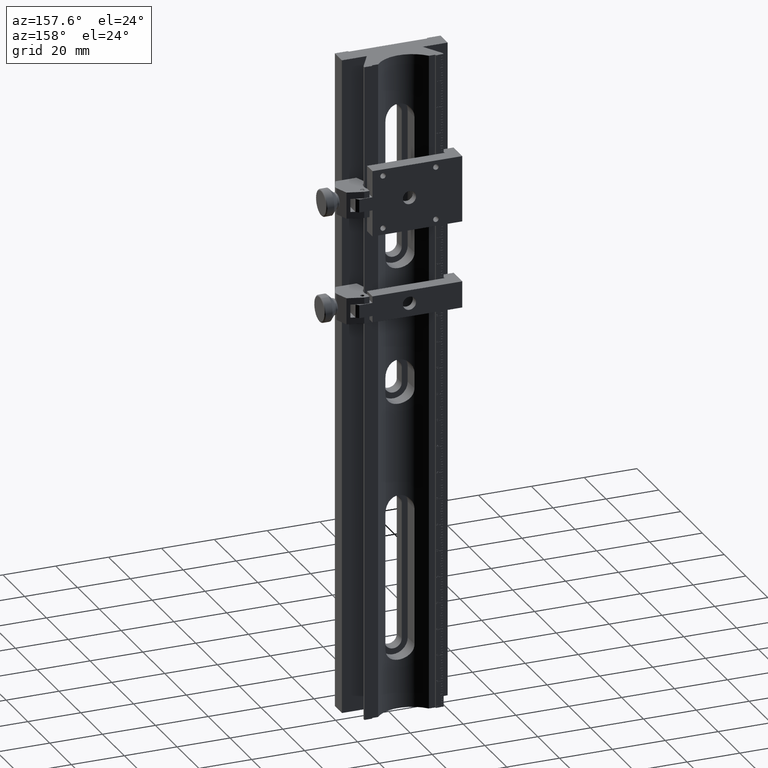
[diagram: clean part render]
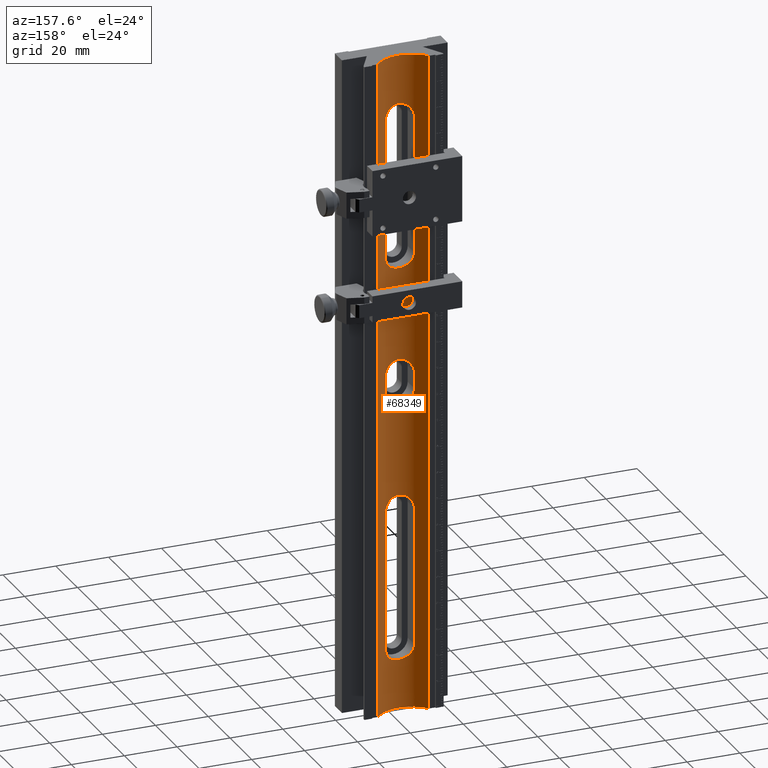
[diagram: same view with one face highlighted and labeled with its STEP entity id]
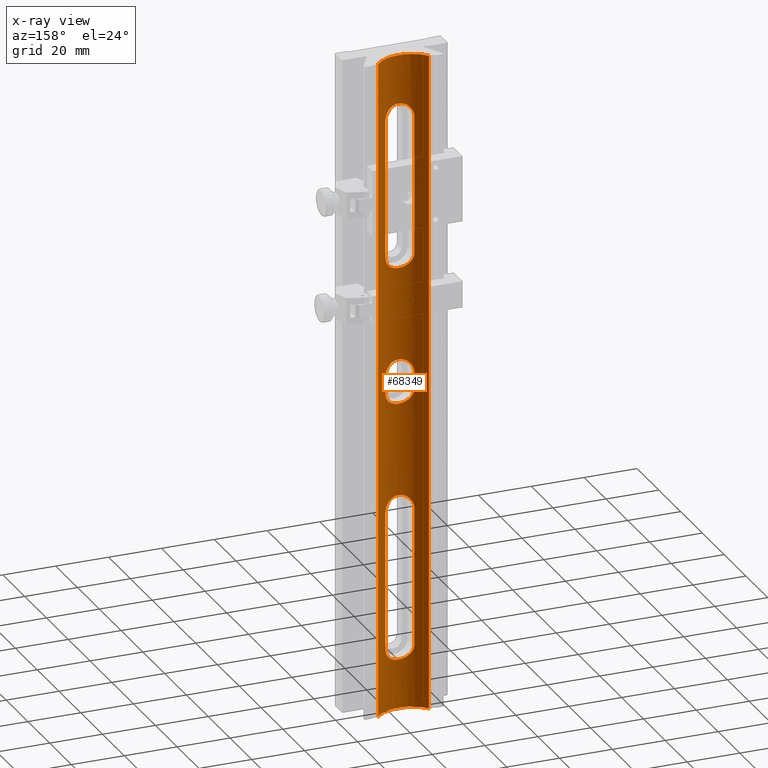
[diagram: x-ray of the same camera — body ghosted, the highlighted face saturated]
A machine part, auxiliary view. The second image highlights one B-rep face of the part: STEP entity #68349.
The next image is the same camera in x-ray: the body ghosted, the highlighted face saturated — about 0% of this face is hidden behind the body in this view.
In plain terms, the highlighted cylindrical surface (edge-blend (fillet) strip) has radius 12.5 mm, axis along (0, 0, -1).
Its self-contained STEP definition (entity closure, byte-faithful):
#156 = CARTESIAN_POINT ( 'NONE',  ( -12.74513842570356381, 9.706582332034562555, 125.0000000000000284 ) ) ;
#269 = CARTESIAN_POINT ( 'NONE',  ( -17.99376517736611092, 6.937000384277329346, 44.46559635561160206 ) ) ;
#539 = B_SPLINE_CURVE_WITH_KNOTS ( 'NONE', 3,
 ( #32970, #39267, #60325, #66587, #67480, #24496, #87637, #45983, #26289, #72419, #80908, #17786, #74181, #4319, #12820, #79576, #46865, #86746, #79126, #45097, #6106, #58991, #32103, #52711, #33430, #51813, #86299, #65692, #80009, #31648, #5213, #24951, #52268, #59438, #18669, #19128, #81330, #28474, #83101, #13725, #33863, #34751, #269, #35189, #75077, #69245, #15036, #75939, #42349, #8306, #88076, #62091, #21311, #62525, #48194, #35612, #54029, #28050, #61202, #61634, #26719, #34287, #6974, #47297, #1136, #40591, #20445, #20887, #88496, #19979, #55786, #69677, #27600, #67932, #13279, #74633, #47757, #41028, #54928, #7878, #710, #55360, #6551, #82237, #27138, #54468, #68359, #81783, #82660, #7421, #21760, #49073, #75505, #48616, #14592, #41908, #76390, #14147, #41452, #68789, #37368, #78137, #49511, #23071, #77702, #56671, #70981, #44080, #76822, #50388, #29785, #15459, #16343, #30672, #10511, #9608, #28923, #43657 ),
 .UNSPECIFIED., .F., .F.,
 ( 4, 2, 2, 1, 1, 1, 2, 2, 2, 2, 1, 1, 1, 1, 2, 2, 2, 2, 2, 1, 1, 2, 2, 2, 2, 1, 1, 1, 2, 2, 2, 2, 1, 1, 2, 2, 2, 2, 2, 1, 1, 1, 2, 2, 2, 2, 1, 1, 1, 2, 2, 2, 2, 1, 1, 1, 2, 2, 2, 2, 2, 1, 1, 1, 2, 2, 2, 2, 1, 1, 2, 2, 4 ),
 ( 0.000000000000000000, 0.06250000000009695023, 0.09375000000014606372, 0.1093750000001699890, 0.1171875000001823819, 0.1210937500001890987, 0.1230468750001930817, 0.1250000000001970368, 0.1562500000002472744, 0.1718750000002727540, 0.1796875000002859657, 0.1835937500002922940, 0.1855468750002954303, 0.1865234375002972900, 0.1870117187502978173, 0.1875000000002983169, 0.2187500000003302636, 0.2343750000003467227, 0.2421875000003554657, 0.2460937500003600176, 0.2480468750003619605, 0.2490234375003630429, 0.2500000000003641532, 0.2812500000004098943, 0.2968750000004327649, 0.3046875000004435341, 0.3085937500004489187, 0.3105468750004513057, 0.3115234375004521383, 0.3125000000004529710, 0.3437500000004596878, 0.3593750000004630185, 0.3671875000004649614, 0.3710937500004661826, 0.3730468750004667378, 0.3750000000004673484, 0.5000000000004970468, 0.5625000000005115908, 0.5937500000005185852, 0.6093750000005215828, 0.6171875000005230261, 0.6210937500005238032, 0.6230468750005239142, 0.6250000000005240253, 0.6562500000005269118, 0.6718750000005280221, 0.6796875000005289102, 0.6835937500005297984, 0.6855468750005299094, 0.6865234375005301315, 0.6875000000005303535, 0.7187500000005117018, 0.7343750000005027090, 0.7421875000004981571, 0.7460937500004956036, 0.7480468750004946044, 0.7490234375004937162, 0.7500000000004929390, 0.7812500000004448664, 0.7968750000004207745, 0.8046875000004085621, 0.8085937500004017897, 0.8105468750003983480, 0.8115234375003977929, 0.8120117187503971268, 0.8125000000003965717, 0.8437500000003178569, 0.8593750000002789990, 0.8671875000002595701, 0.8710937500002499112, 0.8730468750002456924, 0.8750000000002414735, 1.000000000000000000 ),
 .UNSPECIFIED. ) ;
#541 = VERTEX_POINT ( 'NONE', #14973 ) ;
#660 = CARTESIAN_POINT ( 'NONE',  ( -26.03204761412743906, 7.554448814137658452, 5.449178497387569209 ) ) ;
#710 = CARTESIAN_POINT ( 'NONE',  ( -24.17052143089362559, 6.924532963155066057, 44.43246552143805417 ) ) ;
#874 = CARTESIAN_POINT ( 'NONE',  ( -17.13933974141199101, 7.189407834559616184, -104.8095394373782483 ) ) ;
#1030 = CARTESIAN_POINT ( 'NONE',  ( -11.50190850319371805, 11.04321137506500072, 125.0000000000000000 ) ) ;
#1136 = CARTESIAN_POINT ( 'NONE',  ( -22.92404458092680741, 6.675631802911870416, 43.80747294716238827 ) ) ;
#1306 = CARTESIAN_POINT ( 'NONE',  ( -18.20448723821364112, 6.883627359234659515, -105.6760600428663111 ) ) ;
#1399 = CARTESIAN_POINT ( 'NONE',  ( -26.60659485934299795, 7.818239214743170962, 49.00000000000000000 ) ) ;
#1412 = CARTESIAN_POINT ( 'NONE',  ( -25.00736377540761524, 7.167435404947673838, 104.8773787750057096 ) ) ;
#1759 = CARTESIAN_POINT ( 'NONE',  ( -23.22269522599859926, 6.723624926909747224, -106.0766350647974150 ) ) ;
#1874 = CARTESIAN_POINT ( 'NONE',  ( -26.24286654872114610, 7.647122342943008633, 102.9679318531834298 ) ) ;
#1946 = CARTESIAN_POINT ( 'NONE',  ( -15.60659485934299973, 7.818239214743180732, 66.33333333333330017 ) ) ;
#2136 = CARTESIAN_POINT ( 'NONE',  ( -12.08845352262625106, 10.33901375688863666, -125.0000000000000000 ) ) ;
#2204 = CARTESIAN_POINT ( 'NONE',  ( -23.21020532432884664, 6.721485675171988028, -106.0818267988153423 ) ) ;
#2314 = CARTESIAN_POINT ( 'NONE',  ( -26.11860343794411676, 7.591825514878034475, 103.2704217478782738 ) ) ;
#2365 = CARTESIAN_POINT ( 'NONE',  ( -15.60659485934299973, 7.818239214743180732, 3.000000000000000000 ) ) ;
#2549 = CARTESIAN_POINT ( 'NONE',  ( -19.28459385734181808, 6.642797407872381044, -125.0000000000000284 ) ) ;
#2593 = CARTESIAN_POINT ( 'NONE',  ( -26.34579123051073424, 7.693696229961090260, -47.32380530239510819 ) ) ;
#2623 = CARTESIAN_POINT ( 'NONE',  ( -18.68098815519508449, 6.780625094627258598, -105.9369820853527528 ) ) ;
#2627 = VERTEX_POINT ( 'NONE', #32505 ) ;
#2734 = CARTESIAN_POINT ( 'NONE',  ( -24.31635847360799119, 6.962393118522912872, 105.4664232708145590 ) ) ;
#2761 = CARTESIAN_POINT ( 'NONE',  ( -15.60659485934299973, 7.818239214743180732, -3.000000000000000000 ) ) ;
#2992 = CARTESIAN_POINT ( 'NONE',  ( -30.71128121549227075, 11.04321137506500072, -125.0000000000000000 ) ) ;
#3031 = CARTESIAN_POINT ( 'NONE',  ( -25.87598318300719669, 7.488641702752550700, -46.25921505873480299 ) ) ;
#3059 = CARTESIAN_POINT ( 'NONE',  ( -18.65588930350495289, 6.785529298341301363, 7.924689276396300386 ) ) ;
#3061 = CARTESIAN_POINT ( 'NONE',  ( -25.64968058410657292, 7.397997896821745023, -104.1001094435664669 ) ) ;
#3190 = CARTESIAN_POINT ( 'NONE',  ( -19.42213505715696797, 6.657191718974726946, 106.2365263953052903 ) ) ;
#3444 = CARTESIAN_POINT ( 'NONE',  ( -28.01753641424599550, 8.587169286776251909, -125.0000000000000284 ) ) ;
#3508 = CARTESIAN_POINT ( 'NONE',  ( -18.18800196296782090, 6.887744719336466481, 7.665184246806928670 ) ) ;
#3630 = CARTESIAN_POINT ( 'NONE',  ( -18.83033386297497103, 6.751261123640516892, 106.0095256917498716 ) ) ;
#3924 = CARTESIAN_POINT ( 'NONE',  ( -25.00089255722933856, 7.165312884573838303, -45.11612380963000390 ) ) ;
#3952 = CARTESIAN_POINT ( 'NONE',  ( -18.34089445942560914, 6.851957618936062033, 7.757456348299495374 ) ) ;
#3954 = CARTESIAN_POINT ( 'NONE',  ( -25.78546360913861335, 7.451301066154955244, -103.8979021460758219 ) ) ;
#4067 = CARTESIAN_POINT ( 'NONE',  ( -18.04927163986682714, 6.922864917334213608, 105.5719592311677815 ) ) ;
#4138 = CARTESIAN_POINT ( 'NONE',  ( -16.34857854756249296, 7.483811528562590354, -5.764773060039631858 ) ) ;
#4319 = CARTESIAN_POINT ( 'NONE',  ( -16.16601964174408579, 7.560537916428955896, 46.57662185665195409 ) ) ;
#4361 = CARTESIAN_POINT ( 'NONE',  ( -16.60030080269011066, 7.383616668228683011, -45.84656256623541282 ) ) ;
#4592 = CARTESIAN_POINT ( 'NONE',  ( -19.84784988981800780, 6.605470267045567390, -8.357092074790953617 ) ) ;
#4820 = CARTESIAN_POINT ( 'NONE',  ( -19.13477429633270788, 6.699617204211990362, -43.86523320780970892 ) ) ;
#4855 = CARTESIAN_POINT ( 'NONE',  ( -25.61288891626524133, 7.383616668331074884, -104.1534374333787554 ) ) ;
#4974 = CARTESIAN_POINT ( 'NONE',  ( -16.56350913482461351, 7.397997896729883394, 104.1001094439266126 ) ) ;
#5021 = CARTESIAN_POINT ( 'NONE',  ( -15.60659485934299973, 7.818239214743180732, 3.000000000000000000 ) ) ;
#5213 = CARTESIAN_POINT ( 'NONE',  ( -17.10786558352910092, 7.199969389810830123, 45.22361886277404608 ) ) ;
#5252 = CARTESIAN_POINT ( 'NONE',  ( -17.92890790277821722, 6.953328854783697999, -44.50890121675007549 ) ) ;
#5401 = CARTESIAN_POINT ( 'NONE',  ( -15.60659485934299973, 7.818239214743180732, 101.0000000000000000 ) ) ;
#5473 = CARTESIAN_POINT ( 'NONE',  ( -21.83695803034553862, 6.563264130978773814, -8.454346703993383727 ) ) ;
#6106 = CARTESIAN_POINT ( 'NONE',  ( -16.52998828074267834, 7.411156040118626720, 45.94963280664185845 ) ) ;
#6149 = CARTESIAN_POINT ( 'NONE',  ( -16.20602479737877033, 7.543679402735780748, -46.50152356895586081 ) ) ;
#6551 = CARTESIAN_POINT ( 'NONE',  ( -24.41078830919504838, 6.987189221330996070, 44.59954454360570963 ) ) ;
#6585 = VERTEX_POINT ( 'NONE', #77706 ) ;
#6628 = CARTESIAN_POINT ( 'NONE',  ( -30.71128121549227075, 11.04321137506500072, -125.0000000000000000 ) ) ;
#6777 = ORIENTED_EDGE ( 'NONE', *, *, #71952, .F. ) ;
#6974 = CARTESIAN_POINT ( 'NONE',  ( -22.52460240711026529, 6.623136659725715525, 43.68269723919128467 ) ) ;
#7051 = CARTESIAN_POINT ( 'NONE',  ( -30.71128121549227075, 11.04321137506500072, 41.66666666666665009 ) ) ;
#7126 = EDGE_CURVE ( 'NONE', #59303, #39627, #8554, .T. ) ;
#7148 = CARTESIAN_POINT ( 'NONE',  ( -16.00131481086699026, 7.633273422499667227, -103.0462486386284269 ) ) ;
#7421 = CARTESIAN_POINT ( 'NONE',  ( -24.97777509125788242, 7.157760269992639479, 45.09308156586827465 ) ) ;
#7583 = ORIENTED_EDGE ( 'NONE', *, *, #65374, .F. ) ;
#7826 = CARTESIAN_POINT ( 'NONE',  ( -26.60659485934299795, 7.818239214743170962, 3.000000000000000000 ) ) ;
#7878 = CARTESIAN_POINT ( 'NONE',  ( -24.16391807883542953, 6.922864917338137580, 44.42804076884311826 ) ) ;
#7934 = B_SPLINE_CURVE_WITH_KNOTS ( 'NONE', 3,
 ( #65759, #59069, #79199, #24125, #85040, #78307, #59507, #17401, #37547, #50559, #86373, #17860, #43827, #77877, #64424, #25023, #52335, #51891, #64878, #30395, #85473, #45603, #85915, #16514, #3508, #3952, #37089, #3059, #57725, #23694, #44712, #50995, #58168, #16949, #44250, #71585, #72043, #65323, #31271, #58610, #80078, #59938, #46056, #18739, #21702, #14094, #68739, #39342, #75886, #39764, #73386, #69197, #14536, #52774, #12461, #75454, #12029, #660, #62478, #41400, #27998, #28422, #49018, #60397, #66656, #67084, #33039, #14986, #7826 ),
 .UNSPECIFIED., .F., .F.,
 ( 4, 2, 2, 2, 1, 2, 2, 2, 2, 2, 2, 2, 2, 2, 2, 2, 2, 2, 2, 2, 2, 2, 2, 2, 2, 2, 2, 2, 2, 2, 2, 2, 2, 2, 4 ),
 ( 0.000000000000000000, 0.03124999999999993061, 0.06249999999999984734, 0.09374999999999991673, 0.1093749999999998751, 0.1171874999999998751, 0.1249999999999998612, 0.1562499999999997224, 0.1718749999999996669, 0.1874999999999996114, 0.2187499999999994726, 0.2499999999999993061, 0.3124999999999990563, 0.3437499999999988898, 0.3593749999999986122, 0.3749999999999982792, 0.4374999999999975575, 0.4687499999999974465, 0.4999999999999973910, 0.5312499999999973355, 0.5624999999999973355, 0.5937499999999972244, 0.6249999999999972244, 0.6874999999999974465, 0.7499999999999977796, 0.7812499999999978906, 0.7968749999999980016, 0.8124999999999980016, 0.8437499999999983347, 0.8593749999999986677, 0.8749999999999988898, 0.9062499999999993339, 0.9218749999999994449, 0.9374999999999994449, 1.000000000000000000 ),
 .UNSPECIFIED. ) ;
#8045 = CARTESIAN_POINT ( 'NONE',  ( -17.37533036614707882, 7.111935881629217526, -105.0469320346913236 ) ) ;
#8155 = CARTESIAN_POINT ( 'NONE',  ( -25.53989193497685051, 7.354806808388623551, 104.2599582836925407 ) ) ;
#8306 = CARTESIAN_POINT ( 'NONE',  ( -18.60254858319607152, 6.796406667750248154, 44.10226814474318502 ) ) ;
#8471 = CARTESIAN_POINT ( 'NONE',  ( -16.44781611933796128, 7.443733762006555565, -103.9240275664777755 ) ) ;
#8554 = B_SPLINE_CURVE_WITH_KNOTS ( 'NONE', 3,
 ( #5021, #25620, #39063, #46226 ),
 .UNSPECIFIED., .F., .F.,
 ( 4, 4 ),
 ( 0.000000000000000000, 1.000000000000000000 ),
 .UNSPECIFIED. ) ;
#8582 = CARTESIAN_POINT ( 'NONE',  ( -23.84790486065604398, 6.846522329034523402, 105.7715112692973634 ) ) ;
#8786 = CARTESIAN_POINT ( 'NONE',  ( -26.60659485934299795, 7.818239214743170962, 3.000000000000000000 ) ) ;
#8851 = CARTESIAN_POINT ( 'NONE',  ( -16.63320474493890444, 7.335148553854158315, -125.0000000000000000 ) ) ;
#8917 = CARTESIAN_POINT ( 'NONE',  ( -17.89683124515179813, 6.962393118510773249, -105.4664232708675229 ) ) ;
#9027 = CARTESIAN_POINT ( 'NONE',  ( -25.03546596596148532, 7.176685217704983799, 104.8489497596916635 ) ) ;
#9329 = CARTESIAN_POINT ( 'NONE',  ( -25.00736377535562482, 7.167435404931385534, -45.12262122494212235 ) ) ;
#9359 = CARTESIAN_POINT ( 'NONE',  ( -24.03341339694810941, 6.890590006735839879, -105.6570045371205850 ) ) ;
#9468 = CARTESIAN_POINT ( 'NONE',  ( -23.53220156323927270, 6.780625094582046763, 105.9369820854754494 ) ) ;
#9608 = CARTESIAN_POINT ( 'NONE',  ( -26.47925446255059612, 7.752022006149450917, 47.59211822702495454 ) ) ;
#9749 = CARTESIAN_POINT ( 'NONE',  ( -25.20471457371511903, 7.233800395933823069, -45.33143189865194245 ) ) ;
#9782 = CARTESIAN_POINT ( 'NONE',  ( -16.52998828071019943, 7.411156040128096478, -104.0503671933094694 ) ) ;
#9901 = CARTESIAN_POINT ( 'NONE',  ( -21.78911353903228587, 6.542803571884387992, 106.5009279083267870 ) ) ;
#10154 = CARTESIAN_POINT ( 'NONE',  ( -14.19565085988653586, 8.587169926185636015, -125.0000000000000000 ) ) ;
#10190 = CARTESIAN_POINT ( 'NONE',  ( -25.53989193389985601, 7.354806807986507877, -45.74004171484279624 ) ) ;
#10228 = CARTESIAN_POINT ( 'NONE',  ( -25.66859746237856044, 7.405420685736261888, -104.0721570516039804 ) ) ;
#10511 = CARTESIAN_POINT ( 'NONE',  ( -26.17646306907132470, 7.617518301193461738, 46.86772838620761661 ) ) ;
#10653 = CARTESIAN_POINT ( 'NONE',  ( -26.47106640184014736, 7.751816289526057169, -47.77301858188166506 ) ) ;
#10686 = CARTESIAN_POINT ( 'NONE',  ( -24.80386483303952971, 7.102569269878968861, -105.0721874294321054 ) ) ;
#10810 = CARTESIAN_POINT ( 'NONE',  ( -16.33154088297369100, 7.490722923416431200, 103.7350950911390299 ) ) ;
#10880 = CARTESIAN_POINT ( 'NONE',  ( -16.64265513828905085, 7.367320504002585757, -6.214235206277177959 ) ) ;
#11097 = CARTESIAN_POINT ( 'NONE',  ( -26.04717007700482867, 7.560537916455891683, -46.57662185678022126 ) ) ;
#11127 = CARTESIAN_POINT ( 'NONE',  ( -26.60659485934301571, 7.818239214743173626, -101.6786683965572280 ) ) ;
#11243 = CARTESIAN_POINT ( 'NONE',  ( -17.23541462742729991, 7.157760269992288649, 104.9069184341309438 ) ) ;
#11314 = CARTESIAN_POINT ( 'NONE',  ( -24.47153063451452581, 7.000727259144115422, -7.365286242375719716 ) ) ;
#11535 = CARTESIAN_POINT ( 'NONE',  ( -16.54201843583535947, 7.406431105124136494, -45.93167074656035709 ) ) ;
#11568 = CARTESIAN_POINT ( 'NONE',  ( -25.67117128287435435, 7.406431105133391313, -104.0683292534043431 ) ) ;
#11689 = CARTESIAN_POINT ( 'NONE',  ( -18.10954334488106809, 6.907796847350050840, 105.6117990103443276 ) ) ;
#11766 = CARTESIAN_POINT ( 'NONE',  ( -23.55730041514090800, 6.785529298333325521, -7.924689276466684973 ) ) ;
#12000 = CARTESIAN_POINT ( 'NONE',  ( -19.02491585806691887, 6.717764907122971252, -43.90915005748531286 ) ) ;
#12029 = CARTESIAN_POINT ( 'NONE',  ( -25.99168377684224396, 7.537212188694945247, 5.528762303844060533 ) ) ;
#12031 = CARTESIAN_POINT ( 'NONE',  ( -24.28428181550187048, 6.953328854677004678, -105.4910987835224745 ) ) ;
#12150 = CARTESIAN_POINT ( 'NONE',  ( -17.35226805266925609, 7.120276316697557561, 105.0199474308404035 ) ) ;
#12222 = CARTESIAN_POINT ( 'NONE',  ( -26.53433015583526355, 7.783049422125386307, -3.906824568816987142 ) ) ;
#12435 = CARTESIAN_POINT ( 'NONE',  ( -16.11350305975200570, 7.583692264647348580, -46.69331312993163863 ) ) ;
#12461 = CARTESIAN_POINT ( 'NONE',  ( -25.77192187320645544, 7.445950418892857137, 5.918459345975660035 ) ) ;
#12626 = CARTESIAN_POINT ( 'NONE',  ( -26.60659485934299795, 7.818239214743170962, -3.000000000000000000 ) ) ;
#12653 = CARTESIAN_POINT ( 'NONE',  ( -20.38585637900526848, 6.562685580985477607, -8.455671095500660428 ) ) ;
#12820 = CARTESIAN_POINT ( 'NONE',  ( -16.29204926975851109, 7.507392507559179862, 46.33951845666712899 ) ) ;
#12861 = CARTESIAN_POINT ( 'NONE',  ( -19.86684516324366001, 6.604200098383790518, -43.63848256100352785 ) ) ;
#13063 = CARTESIAN_POINT ( 'NONE',  ( -26.60659485934299795, 7.818239214743170962, 3.000000000000000000 ) ) ;
#13168 = CARTESIAN_POINT ( 'NONE',  ( -12.08821880901844104, 10.33929555071196305, 125.0000000000000284 ) ) ;
#13240 = B_SPLINE_CURVE_WITH_KNOTS ( 'NONE', 3,
 ( #19728, #47040, #61372, #41194, #88673, #27321, #47925, #75244, #7148, #61822, #75675, #14322, #70730, #28207, #70280, #84158, #43830, #8471, #64005, #28646, #9782, #56845, #69845, #22802, #37091, #84592, #23249, #42943, #42091, #21484, #48800, #874, #50106, #71151, #15626, #14778, #8045, #77425, #50561, #36668, #8917, #22379, #15209, #49261, #29106, #57269, #77879, #1306, #83739, #55972, #2623, #76574, #83291, #36237, #55527, #42513, #76993, #69423, #16081, #16517, #76126, #82825, #21943, #35787, #63129, #63583, #35354, #43392, #2204, #1759, #29952, #29542, #62691, #56422, #49679, #9359, #59509, #52776, #64881, #65326, #16951, #12031, #37992, #64426, #45605, #10686, #32178, #24127, #85042, #45167, #71587, #44714, #72928, #31274, #30398, #73388, #78743, #4855, #51893, #3061, #72045, #10228, #11568, #38437, #17403, #3954, #38899, #79201, #58612, #66223, #23696, #85917, #86814, #46060, #25463, #72490, #11127, #80080 ),
 .UNSPECIFIED., .F., .F.,
 ( 4, 2, 2, 1, 1, 1, 2, 2, 2, 2, 1, 1, 1, 1, 2, 2, 2, 2, 2, 1, 1, 2, 2, 2, 2, 1, 1, 1, 2, 2, 2, 2, 1, 1, 2, 2, 2, 2, 2, 1, 1, 1, 2, 2, 2, 2, 1, 1, 1, 2, 2, 2, 2, 1, 1, 1, 2, 2, 2, 2, 2, 1, 1, 1, 2, 2, 2, 2, 1, 1, 2, 2, 4 ),
 ( 0.000000000000000000, 0.06249999999971503351, 0.09374999999957255026, 0.1093749999995013850, 0.1171874999994648586, 0.1210937499994465816, 0.1230468749994383520, 0.1249999999994301225, 0.1562499999993368638, 0.1718749999992902899, 0.1796874999992668365, 0.1835937499992542354, 0.1855468749992472133, 0.1865234374992429667, 0.1870117187492399691, 0.1874999999992369715, 0.2187499999992313648, 0.2343749999992285893, 0.2421874999992266464, 0.2460937499992256750, 0.2480468749992252031, 0.2490234374992249256, 0.2499999999992246758, 0.2812499999992154054, 0.2968749999992115196, 0.3046874999992100763, 0.3085937499992093547, 0.3105468749992090216, 0.3115234374992085775, 0.3124999999992080779, 0.3437499999991742716, 0.3593749999991570632, 0.3671874999991490696, 0.3710937499991453503, 0.3730468749991434629, 0.3749999999991416311, 0.4999999999990187849, 0.5624999999989570565, 0.5937499999989265254, 0.6093749999989110933, 0.6171874999989036548, 0.6210937499988999910, 0.6230468749988981036, 0.6249999999988961052, 0.6562499999988553601, 0.6718749999988349320, 0.6796874999988242738, 0.6835937499988188337, 0.6855468749988156141, 0.6865234374988141708, 0.6874999999988127275, 0.7187499999987524424, 0.7343749999987216892, 0.7421874999987055910, 0.7460937499986982635, 0.7480468749986951549, 0.7490234374986934895, 0.7499999999986918242, 0.7812499999986721733, 0.7968749999986620702, 0.8046874999986572963, 0.8085937499986564081, 0.8105468749986576293, 0.8115234374986582955, 0.8120117187486604049, 0.8124999999986625143, 0.8437499999988589128, 0.8593749999989570565, 0.8671874999990061283, 0.8710937499990318855, 0.8730468749990447641, 0.8749999999990575317, 1.000000000000000000 ),
 .UNSPECIFIED. ) ;
#13261 = ORIENTED_EDGE ( 'NONE', *, *, #61958, .F. ) ;
#13279 = CARTESIAN_POINT ( 'NONE',  ( -23.97337225272426409, 6.876357986421320234, 44.30598747292110318 ) ) ;
#13320 = CARTESIAN_POINT ( 'NONE',  ( -17.23541462745450303, 7.157760269984861701, -45.09308156584210536 ) ) ;
#13725 = CARTESIAN_POINT ( 'NONE',  ( -17.80235992690227675, 6.987846128267390711, 44.60248835301389647 ) ) ;
#14094 = CARTESIAN_POINT ( 'NONE',  ( -23.87217263703578851, 6.849113933195027037, 7.767626912836395725 ) ) ;
#14147 = CARTESIAN_POINT ( 'NONE',  ( -25.61288891569257942, 7.383616668112621184, 45.84656256580088751 ) ) ;
#14322 = CARTESIAN_POINT ( 'NONE',  ( -16.02963733133383784, 7.620666996850760988, -103.1153250555060481 ) ) ;
#14536 = CARTESIAN_POINT ( 'NONE',  ( -25.57053458049065142, 7.367320504038550766, 6.214235206183781557 ) ) ;
#14592 = CARTESIAN_POINT ( 'NONE',  ( -25.48759754860092031, 7.335518436599702596, 45.67362968676736301 ) ) ;
#14778 = CARTESIAN_POINT ( 'NONE',  ( -17.21229716144530997, 7.165312884576941599, -104.8838761903586914 ) ) ;
#14893 = CARTESIAN_POINT ( 'NONE',  ( -19.13477429637513438, 6.699617204210725596, 106.1347667922067330 ) ) ;
#14973 = CARTESIAN_POINT ( 'NONE',  ( -26.60659485934299795, 7.818239214743170962, -101.0000000000000000 ) ) ;
#14986 = CARTESIAN_POINT ( 'NONE',  ( -26.60659485934298729, 7.818239214743167409, 3.366890644501867591 ) ) ;
#15036 = CARTESIAN_POINT ( 'NONE',  ( -18.03804587681104010, 6.925701966757761951, 44.43556750265420163 ) ) ;
#15184 = B_SPLINE_CURVE_WITH_KNOTS ( 'NONE', 3,
 ( #57669, #32117, #66600, #74195 ),
 .UNSPECIFIED., .F., .F.,
 ( 4, 4 ),
 ( 0.000000000000000000, 1.000000000000000000 ),
 .UNSPECIFIED. ) ;
#15208 = VERTEX_POINT ( 'NONE', #31547 ) ;
#15209 = CARTESIAN_POINT ( 'NONE',  ( -17.99376517746028981, 6.937000384254099927, -105.5344036444529223 ) ) ;
#15319 = CARTESIAN_POINT ( 'NONE',  ( -25.76537359919972658, 7.443733761962621820, 103.9240275667120272 ) ) ;
#15459 = CARTESIAN_POINT ( 'NONE',  ( -26.15389649725731402, 7.607519616695722853, 46.81471978648074383 ) ) ;
#15562 = CARTESIAN_POINT ( 'NONE',  ( -29.46868116538815130, 9.706966582886851214, -125.0000000000000000 ) ) ;
#15626 = CARTESIAN_POINT ( 'NONE',  ( -17.20582594321317771, 7.167435404968445667, -104.8773787749401691 ) ) ;
#15742 = CARTESIAN_POINT ( 'NONE',  ( -23.26256656299034375, 6.730541808861222997, 106.0598312510115306 ) ) ;
#15881 = CARTESIAN_POINT ( 'NONE',  ( -26.60659485934299795, 7.818239214743160304, -66.33333333333330017 ) ) ;
#15987 = CARTESIAN_POINT ( 'NONE',  ( -30.71128121549227075, 11.04321137506500072, -125.0000000000000000 ) ) ;
#16053 = CARTESIAN_POINT ( 'NONE',  ( -23.29108899821016010, 6.735550683462577126, -43.95235335747759109 ) ) ;
#16081 = CARTESIAN_POINT ( 'NONE',  ( -20.42407617950980026, 6.542803571894292958, -106.5009279083290181 ) ) ;
#16196 = CARTESIAN_POINT ( 'NONE',  ( -26.04717007707520438, 7.560537916481555598, 103.4233781430763344 ) ) ;
#16343 = CARTESIAN_POINT ( 'NONE',  ( -26.16568578497369302, 7.612739857203588478, 46.84229331808180063 ) ) ;
#16376 = CARTESIAN_POINT ( 'NONE',  ( -26.11245169398792854, 7.589083587519605878, -5.285410761241550404 ) ) ;
#16491 = CARTESIAN_POINT ( 'NONE',  ( -20.75418013851105314, 6.543418595122641790, -43.50047149613853747 ) ) ;
#16514 = CARTESIAN_POINT ( 'NONE',  ( -17.74165908422913418, 7.000727259129520874, 7.365286242478119583 ) ) ;
#16517 = CARTESIAN_POINT ( 'NONE',  ( -21.45900958017561422, 6.543418595117921122, -106.4995285038609438 ) ) ;
#16629 = CARTESIAN_POINT ( 'NONE',  ( -24.83785935260190669, 7.111935881641036516, 105.0469320346288242 ) ) ;
#16887 = CARTESIAN_POINT ( 'NONE',  ( -30.12473328884279766, 10.33901026652525523, -125.0000000000000284 ) ) ;
#16923 = CARTESIAN_POINT ( 'NONE',  ( -24.68626598476078016, 7.066117087804513197, -44.82054943083654308 ) ) ;
#16949 = CARTESIAN_POINT ( 'NONE',  ( -20.37623168818528896, 6.563264130987858103, 8.454346703993497414 ) ) ;
#16951 = CARTESIAN_POINT ( 'NONE',  ( -24.17052143092007910, 6.924532963161876609, -105.5675344785441609 ) ) ;
#17068 = CARTESIAN_POINT ( 'NONE',  ( -19.02491585808596142, 6.717764907121483553, 106.0908499425225102 ) ) ;
#17367 = CARTESIAN_POINT ( 'NONE',  ( -25.61776531098862719, 7.385483773415880471, -45.85222823750358856 ) ) ;
#17401 = CARTESIAN_POINT ( 'NONE',  ( -15.87356659990341434, 7.691283578353231398, 4.695360783161790508 ) ) ;
#17403 = CARTESIAN_POINT ( 'NONE',  ( -25.67282764975539067, 7.407081368278913835, -104.0658649324207232 ) ) ;
#17470 = FACE_BOUND ( 'NONE', #57025, .T. ) ;
#17532 = CARTESIAN_POINT ( 'NONE',  ( -18.99049449269823597, 6.723624926908389199, 106.0766350648018630 ) ) ;
#17653 = B_SPLINE_CURVE_WITH_KNOTS ( 'NONE', 3,
 ( #1399, #35882, #21579, #76231 ),
 .UNSPECIFIED., .F., .F.,
 ( 4, 4 ),
 ( 0.000000000000000000, 1.000000000000000000 ),
 .UNSPECIFIED. ) ;
#17786 = CARTESIAN_POINT ( 'NONE',  ( -16.02963733131935342, 7.620666996856916953, 46.88467494452858375 ) ) ;
#17830 = CARTESIAN_POINT ( 'NONE',  ( -26.60659485934300506, 7.818239214743173626, -48.66018992097459517 ) ) ;
#17860 = CARTESIAN_POINT ( 'NONE',  ( -16.01490089441562148, 7.627213589329338461, 5.080056253033518487 ) ) ;
#18047 = EDGE_CURVE ( 'NONE', #71557, #28099, #34606, .T. ) ;
#18057 = CARTESIAN_POINT ( 'NONE',  ( -16.10435532805223602, 7.587673426431919665, -5.288183775674544229 ) ) ;
#18163 = CARTESIAN_POINT ( 'NONE',  ( -15.60659485934299973, 7.818239214743170962, 49.00000000000000000 ) ) ;
#18263 = CARTESIAN_POINT ( 'NONE',  ( -18.43902798276371868, 6.830984719543300443, -44.18938041044122400 ) ) ;
#18352 = CARTESIAN_POINT ( 'NONE',  ( -21.10659485934299795, 19.04321137506500250, 125.0000000000000000 ) ) ;
#18404 = CARTESIAN_POINT ( 'NONE',  ( -18.35959144858604475, 6.848582879349878638, 105.7657777089998916 ) ) ;
#18478 = CARTESIAN_POINT ( 'NONE',  ( -26.21580312977315685, 7.635042435969069174, -5.036692909397723739 ) ) ;
#18669 = CARTESIAN_POINT ( 'NONE',  ( -17.20582594329004777, 7.167435404943769406, 45.12262122498263750 ) ) ;
#18739 = CARTESIAN_POINT ( 'NONE',  ( -23.05888817293928739, 6.695465038197392360, 8.144979287169542559 ) ) ;
#18810 = B_SPLINE_CURVE_WITH_KNOTS ( 'NONE', 3,
 ( #71337, #70477, #1946, #49443 ),
 .UNSPECIFIED., .F., .F.,
 ( 4, 4 ),
 ( 0.000000000000000000, 1.000000000000000000 ),
 .UNSPECIFIED. ) ;
#18858 = CARTESIAN_POINT ( 'NONE',  ( -16.05929322137722437, 7.607519616717827837, 103.1852802133998352 ) ) ;
#18937 = CARTESIAN_POINT ( 'NONE',  ( -26.46311762376441834, 7.748999515468422139, -4.261072586404993423 ) ) ;
#19128 = CARTESIAN_POINT ( 'NONE',  ( -17.21229716144663158, 7.165312884576753305, 45.11612380964002256 ) ) ;
#19168 = CARTESIAN_POINT ( 'NONE',  ( -18.67538707716641966, 6.780945974445186764, -44.06328811598621087 ) ) ;
#19381 = CARTESIAN_POINT ( 'NONE',  ( -25.90947857841496216, 7.502656713859213511, -5.681603809464059296 ) ) ;
#19595 = CARTESIAN_POINT ( 'NONE',  ( -19.05783310968584843, 6.712227897373080232, -43.89573148345315445 ) ) ;
#19728 = CARTESIAN_POINT ( 'NONE',  ( -15.60659485934299973, 7.818239214743180732, -101.0000000000000000 ) ) ;
#19809 = CARTESIAN_POINT ( 'NONE',  ( -16.06859172701826566, 7.603368620717732007, -5.208347393249415980 ) ) ;
#19979 = CARTESIAN_POINT ( 'NONE',  ( -23.22269522598665858, 6.723624926907812771, 43.92336493519761120 ) ) ;
#20020 = CARTESIAN_POINT ( 'NONE',  ( -18.23981746595382347, 6.876357986422916291, -44.30598747292594908 ) ) ;
#20445 = CARTESIAN_POINT ( 'NONE',  ( -23.15535660900088288, 6.712227897373264085, 43.89573148345343157 ) ) ;
#20467 = CARTESIAN_POINT ( 'NONE',  ( -15.60659485934299973, 7.818239214743180732, -101.0000000000000000 ) ) ;
#20703 = CARTESIAN_POINT ( 'NONE',  ( -15.64293735550112707, 7.800212269309790614, -3.730966533373262450 ) ) ;
#20778 = CARTESIAN_POINT ( 'NONE',  ( -30.71128121549227075, 11.04321137506500072, 125.0000000000000000 ) ) ;
#20887 = CARTESIAN_POINT ( 'NONE',  ( -23.18827386061942519, 6.717764907123064511, 43.90915005748545497 ) ) ;
#21201 = CARTESIAN_POINT ( 'NONE',  ( -20.19084490047927005, 6.543291471652771030, 125.0000000000000000 ) ) ;
#21311 = CARTESIAN_POINT ( 'NONE',  ( -18.85522038661264332, 6.747541129294316598, 43.98159565496449375 ) ) ;
#21484 = CARTESIAN_POINT ( 'NONE',  ( -17.04675852162765537, 7.220634441541775139, -104.7109688991416903 ) ) ;
#21579 = CARTESIAN_POINT ( 'NONE',  ( -26.60659485934299795, 7.818239214743170962, 83.66666666666669983 ) ) ;
#21702 = CARTESIAN_POINT ( 'NONE',  ( -23.55616993316522567, 6.780962923599439307, 7.937471579083329232 ) ) ;
#21728 = AXIS2_PLACEMENT_3D ( 'NONE', #18352, #78369, #85984 ) ;
#21760 = CARTESIAN_POINT ( 'NONE',  ( -24.98760965243732812, 7.160966553232972487, 45.10285075796294052 ) ) ;
#21943 = CARTESIAN_POINT ( 'NONE',  ( -22.52460240710193418, 6.623136659718429797, -106.3173027608110601 ) ) ;
#22058 = CARTESIAN_POINT ( 'NONE',  ( -25.68320143795451216, 7.411156040122062194, 104.0503671933413443 ) ) ;
#22379 = CARTESIAN_POINT ( 'NONE',  ( -17.94272364420821475, 6.950223556537599379, -105.4991309199995015 ) ) ;
#22487 = CARTESIAN_POINT ( 'NONE',  ( -25.69523992890241715, 7.415894957570397850, 104.0322608637605697 ) ) ;
#22773 = CARTESIAN_POINT ( 'NONE',  ( -23.35796933207257808, 6.747541129293560758, -43.98159565496415269 ) ) ;
#22802 = CARTESIAN_POINT ( 'NONE',  ( -16.54129493987970889, 7.406715444698667383, -104.0672526588715243 ) ) ;
#22915 = CARTESIAN_POINT ( 'NONE',  ( -20.75418013860615218, 6.543418595122855841, 106.4995285038620239 ) ) ;
#23071 = CARTESIAN_POINT ( 'NONE',  ( -25.67287500511609366, 7.407099958148446461, 45.93420679694897757 ) ) ;
#23100 = CARTESIAN_POINT ( 'NONE',  ( -17.47002078353754584, 7.080934092606600672, -7.141635653603270129 ) ) ;
#23221 = CARTESIAN_POINT ( 'NONE',  ( -22.52138708050679128, 6.603052356686934132, -43.63073016066145726 ) ) ;
#23249 = CARTESIAN_POINT ( 'NONE',  ( -16.83771391308955145, 7.294133457944235843, -104.4690803118080566 ) ) ;
#23371 = CARTESIAN_POINT ( 'NONE',  ( -25.67454126092096089, 7.407753905371444958, 104.0633111796875170 ) ) ;
#23626 = CARTESIAN_POINT ( 'NONE',  ( -11.50190850319371805, 11.04321137506500072, -125.0000000000000000 ) ) ;
#23668 = CARTESIAN_POINT ( 'NONE',  ( -24.18402212252358652, 6.927955563903730685, -44.44155079274713671 ) ) ;
#23694 = CARTESIAN_POINT ( 'NONE',  ( -18.89716845390292832, 6.739728754439959779, 8.037530285704768573 ) ) ;
#23696 = CARTESIAN_POINT ( 'NONE',  ( -26.12552476338671781, 7.595001288776398241, -103.2501645340735337 ) ) ;
#23757 = CYLINDRICAL_SURFACE ( 'NONE', #21728, 12.50000000000000000 ) ;
#23807 = CARTESIAN_POINT ( 'NONE',  ( -25.10532413524813222, 7.199969389842340028, 104.7763811371295759 ) ) ;
#24095 = CARTESIAN_POINT ( 'NONE',  ( -26.18355238736537771, 7.620666996856259701, -46.88467494452557816 ) ) ;
#24125 = CARTESIAN_POINT ( 'NONE',  ( -15.65147324522591532, 7.796343049291029281, 3.724695974274062849 ) ) ;
#24127 = CARTESIAN_POINT ( 'NONE',  ( -24.92880533808656907, 7.141908589469987412, -104.9549975933839647 ) ) ;
#24243 = CARTESIAN_POINT ( 'NONE',  ( -17.92890790241404630, 6.953328854873598530, 105.4910987830055404 ) ) ;
#24496 = CARTESIAN_POINT ( 'NONE',  ( -15.86739848818284315, 7.693696229960812261, 47.32380530237156790 ) ) ;
#24541 = CARTESIAN_POINT ( 'NONE',  ( -24.47740008615090446, 7.006299982556996930, -44.65308900143077864 ) ) ;
#24651 = FACE_OUTER_BOUND ( 'NONE', #45542, .T. ) ;
#24780 = CARTESIAN_POINT ( 'NONE',  ( -16.18114210463788183, 7.554448814103595033, -5.449178497579846514 ) ) ;
#24784 = EDGE_CURVE ( 'NONE', #59303, #71557, #7934, .T. ) ;
#24951 = CARTESIAN_POINT ( 'NONE',  ( -17.13933974193740895, 7.189407834388080509, 45.19046056207751860 ) ) ;
#24991 = CARTESIAN_POINT ( 'NONE',  ( -17.03226279967170598, 7.224282047718959987, -45.29632643844009721 ) ) ;
#25023 = CARTESIAN_POINT ( 'NONE',  ( -16.34787774592495779, 7.484357762358284205, 5.759209372876351374 ) ) ;
#25150 = CARTESIAN_POINT ( 'NONE',  ( -16.55072592729972669, 7.403013061407205164, 104.0812543363529414 ) ) ;
#25202 = EDGE_CURVE ( 'NONE', #47409, #71991, #80415, .T. ) ;
#25221 = CARTESIAN_POINT ( 'NONE',  ( -26.56171647346006637, 7.796343049291023952, -3.724695974298771528 ) ) ;
#25431 = CARTESIAN_POINT ( 'NONE',  ( -15.73393525614898181, 7.752022006149452693, -47.59211822699245431 ) ) ;
#25463 = CARTESIAN_POINT ( 'NONE',  ( -26.17646306907228748, 7.617518301194387220, -103.1322716137901097 ) ) ;
#25577 = CARTESIAN_POINT ( 'NONE',  ( -16.16731082951557497, 7.560302178223478720, 103.4208579915871127 ) ) ;
#25620 = CARTESIAN_POINT ( 'NONE',  ( -15.60659485934299973, 7.818239214743189613, 1.000000000000000000 ) ) ;
#25645 = CARTESIAN_POINT ( 'NONE',  ( -26.33962311877692386, 7.691283578350625483, -4.695360783165551055 ) ) ;
#25871 = CARTESIAN_POINT ( 'NONE',  ( -18.10954334481010264, 6.907796847366499016, -44.38820098970197847 ) ) ;
#26070 = CARTESIAN_POINT ( 'NONE',  ( -26.60659485934299795, 7.818239214743170962, -1.000000000000000000 ) ) ;
#26100 = CARTESIAN_POINT ( 'NONE',  ( -26.03602464923045900, 7.555866269454638129, -5.446065375749653548 ) ) ;
#26289 = CARTESIAN_POINT ( 'NONE',  ( -16.00131481086145868, 7.633273422499993188, 46.95375136138531502 ) ) ;
#26330 = CARTESIAN_POINT ( 'NONE',  ( -19.68858731158191233, 6.623136659724358388, -43.68269723918958647 ) ) ;
#26568 = CARTESIAN_POINT ( 'NONE',  ( -26.60659485934300150, 7.818239214743170962, 101.3398100790418539 ) ) ;
#26640 = ORIENTED_EDGE ( 'NONE', *, *, #86832, .F. ) ;
#26719 = CARTESIAN_POINT ( 'NONE',  ( -21.81285026737361932, 6.558690848844141996, 43.53350226111876964 ) ) ;
#26756 = CARTESIAN_POINT ( 'NONE',  ( -16.54459225634516528, 7.405420685721556318, -45.92784294833995773 ) ) ;
#27138 = CARTESIAN_POINT ( 'NONE',  ( -24.69154347736478883, 7.068268378830692811, 44.82768574033634934 ) ) ;
#27321 = CARTESIAN_POINT ( 'NONE',  ( -15.86739848820178267, 7.693696229960596433, -102.6761946976872508 ) ) ;
#27491 = CARTESIAN_POINT ( 'NONE',  ( -27.23917659073955022, 8.112427241064944283, 124.9999999999999574 ) ) ;
#27600 = CARTESIAN_POINT ( 'NONE',  ( -23.77416173591035076, 6.830984719540962757, 44.18938041043459464 ) ) ;
#27998 = CARTESIAN_POINT ( 'NONE',  ( -26.24999959942389438, 7.650174075831177589, 4.956650384534267317 ) ) ;
#28050 = CARTESIAN_POINT ( 'NONE',  ( -19.69180263816963716, 6.603052356684840696, 43.63073016066573473 ) ) ;
#28099 = VERTEX_POINT ( 'NONE', #30640 ) ;
#28207 = CARTESIAN_POINT ( 'NONE',  ( -16.16601964137105085, 7.560537916567823480, -103.4233781425875520 ) ) ;
#28363 = CARTESIAN_POINT ( 'NONE',  ( -29.46844133293279810, 9.706680938934697522, 124.9999999999999858 ) ) ;
#28422 = CARTESIAN_POINT ( 'NONE',  ( -26.31146074214734298, 7.678231719769822661, 4.786732988006432876 ) ) ;
#28474 = CARTESIAN_POINT ( 'NONE',  ( -17.52692373457841057, 7.066117087623336346, 44.82054943027709726 ) ) ;
#28646 = CARTESIAN_POINT ( 'NONE',  ( -16.51794978974150041, 7.415894957582440661, -104.0322608636970614 ) ) ;
#28759 = CARTESIAN_POINT ( 'NONE',  ( -24.68626598390100568, 7.066117087558589027, 105.1794505698998563 ) ) ;
#28923 = CARTESIAN_POINT ( 'NONE',  ( -26.60659485934300861, 7.818239214743172738, 48.32133160325414423 ) ) ;
#29106 = CARTESIAN_POINT ( 'NONE',  ( -18.02916759625421150, 6.927955563880640710, -105.5584492073148368 ) ) ;
#29216 = CARTESIAN_POINT ( 'NONE',  ( -26.57502419205962241, 7.801633483438835448, 101.6916892046020706 ) ) ;
#29509 = CARTESIAN_POINT ( 'NONE',  ( -24.17514384187695242, 6.925701966758285089, -44.43556750265551614 ) ) ;
#29542 = CARTESIAN_POINT ( 'NONE',  ( -23.53780264141512646, 6.780945974429237744, -105.9367118840652608 ) ) ;
#29586 = VERTEX_POINT ( 'NONE', #18163 ) ;
#29634 = CARTESIAN_POINT ( 'NONE',  ( -15.60659485934299973, 7.818239214743180732, 101.0000000000000000 ) ) ;
#29646 = CARTESIAN_POINT ( 'NONE',  ( -24.17514384188438115, 6.925701966759899797, 105.5644324973394674 ) ) ;
#29785 = CARTESIAN_POINT ( 'NONE',  ( -26.12552476334688478, 7.595001288754541946, 46.74983546583695926 ) ) ;
#29811 = CARTESIAN_POINT ( 'NONE',  ( -19.67245337278514228, 6.624530669813973205, -8.312864671598143573 ) ) ;
#29922 = CARTESIAN_POINT ( 'NONE',  ( -23.24358353911439679, 6.727231423116079689, -43.93212217410778919 ) ) ;
#29952 = CARTESIAN_POINT ( 'NONE',  ( -23.38285585582073267, 6.751261123667426034, -106.0095256917033311 ) ) ;
#30070 = CARTESIAN_POINT ( 'NONE',  ( -19.68858731170634613, 6.623136659723974695, 106.3173027608443562 ) ) ;
#30205 = CARTESIAN_POINT ( 'NONE',  ( -26.60659485934299795, 7.818239214743170962, -49.00000000000000000 ) ) ;
#30332 = CARTESIAN_POINT ( 'NONE',  ( -22.02307822976187168, 6.543210877433598860, -125.0000000000000000 ) ) ;
#30368 = CARTESIAN_POINT ( 'NONE',  ( -25.76537359915704428, 7.443733761949949290, -46.07597243322056357 ) ) ;
#30395 = CARTESIAN_POINT ( 'NONE',  ( -16.74354129439629801, 7.328769409824591463, 6.353527280512320630 ) ) ;
#30398 = CARTESIAN_POINT ( 'NONE',  ( -25.48759754967312929, 7.335518436986813384, -104.3263703118204262 ) ) ;
#30524 = CARTESIAN_POINT ( 'NONE',  ( -24.27046607453708660, 6.950223556547487469, 105.4991309199580343 ) ) ;
#30635 = ORIENTED_EDGE ( 'NONE', *, *, #77008, .F. ) ;
#30640 = CARTESIAN_POINT ( 'NONE',  ( -26.60659485934299795, 7.818239214743170962, -3.000000000000000000 ) ) ;
#30672 = CARTESIAN_POINT ( 'NONE',  ( -26.17346417248533541, 7.616187849279671518, 46.86062287510365820 ) ) ;
#30777 = CARTESIAN_POINT ( 'NONE',  ( -11.50190850319371805, 11.04321137506500072, -125.0000000000000000 ) ) ;
#30814 = CARTESIAN_POINT ( 'NONE',  ( -26.19822297187208449, 7.627192222071595751, -46.92022379813466415 ) ) ;
#30957 = CARTESIAN_POINT ( 'NONE',  ( -16.61856628452841633, 7.376514198289308766, 104.1794303080313853 ) ) ;
#31246 = CARTESIAN_POINT ( 'NONE',  ( -26.30141794747526518, 7.673457994934005377, -47.18899041815596718 ) ) ;
#31271 = CARTESIAN_POINT ( 'NONE',  ( -21.82733333981763479, 6.562685580993385059, 8.455671095500552070 ) ) ;
#31274 = CARTESIAN_POINT ( 'NONE',  ( -25.32268694098373985, 7.274625576720572973, -104.5364196096175675 ) ) ;
#31389 = CARTESIAN_POINT ( 'NONE',  ( -18.17977632181701608, 6.890590006714275795, 105.6570045371706783 ) ) ;
#31459 = CARTESIAN_POINT ( 'NONE',  ( -25.86531197284175931, 7.484357762391447011, -5.759209372694209073 ) ) ;
#31547 = CARTESIAN_POINT ( 'NONE',  ( -26.60659485934299795, 7.818239214743170962, 49.00000000000000000 ) ) ;
#31648 = CARTESIAN_POINT ( 'NONE',  ( -17.04675852268497493, 7.220634441187311126, 45.28903109970721630 ) ) ;
#31692 = CARTESIAN_POINT ( 'NONE',  ( -18.04266828778407472, 6.924532963157156829, -44.43246552144363903 ) ) ;
#31857 = CARTESIAN_POINT ( 'NONE',  ( -16.54031471357506788, 7.407099958146675434, 104.0657932030587318 ) ) ;
#31928 = CARTESIAN_POINT ( 'NONE',  ( -26.29669707800815814, 7.671541433642899754, -4.824209184187086663 ) ) ;
#32103 = CARTESIAN_POINT ( 'NONE',  ( -16.53864845776763559, 7.407753905370706882, 45.93668882030859635 ) ) ;
#32117 = CARTESIAN_POINT ( 'NONE',  ( -11.50190850319371805, 11.04321137506500072, -41.66666666666665009 ) ) ;
#32144 = CARTESIAN_POINT ( 'NONE',  ( -17.52164624163765794, 7.068268378743129077, -44.82768574006261986 ) ) ;
#32178 = CARTESIAN_POINT ( 'NONE',  ( -24.86092166550988480, 7.120276316550393503, -105.0199474313180019 ) ) ;
#32296 = CARTESIAN_POINT ( 'NONE',  ( -17.03226280000732018, 7.224282047622537561, 104.7036735618969772 ) ) ;
#32367 = CARTESIAN_POINT ( 'NONE',  ( -23.31602126492355609, 6.739728754464201721, -8.037530285665699381 ) ) ;
#32387 = VERTEX_POINT ( 'NONE', #35372 ) ;
#32505 = CARTESIAN_POINT ( 'NONE',  ( -11.50190850319371805, 11.04321137506500072, 125.0000000000000000 ) ) ;
#32571 = CARTESIAN_POINT ( 'NONE',  ( -16.61856628425479698, 7.376514198385205390, -45.82056969235551236 ) ) ;
#32791 = CARTESIAN_POINT ( 'NONE',  ( -24.74534232587834381, 7.081610258389198442, -7.139657341017252357 ) ) ;
#32970 = CARTESIAN_POINT ( 'NONE',  ( -15.60659485934299973, 7.818239214743170962, 49.00000000000000000 ) ) ;
#33039 = CARTESIAN_POINT ( 'NONE',  ( -26.57025236318484573, 7.800212269309781732, 3.730966533432804599 ) ) ;
#33430 = CARTESIAN_POINT ( 'NONE',  ( -16.59542440715170741, 7.385483773628566340, 45.85222823831536232 ) ) ;
#33468 = CARTESIAN_POINT ( 'NONE',  ( -16.04750393371394424, 7.612739857202570626, -46.84229331807794949 ) ) ;
#33759 = CARTESIAN_POINT ( 'NONE',  ( -14.19502343203429717, 8.587553537628561884, 125.0000000000000284 ) ) ;
#33863 = CARTESIAN_POINT ( 'NONE',  ( -17.89683124493291899, 6.962393118565526784, 44.53357672928952127 ) ) ;
#33887 = CARTESIAN_POINT ( 'NONE',  ( -15.60659485934299973, 7.818239214743189613, -66.33333333333330017 ) ) ;
#34112 = CARTESIAN_POINT ( 'NONE',  ( -15.75397721961957131, 7.747190726605293953, -4.267973387795697349 ) ) ;
#34287 = CARTESIAN_POINT ( 'NONE',  ( -22.34634455544922460, 6.604200098385275552, 43.63848256100514789 ) ) ;
#34606 = B_SPLINE_CURVE_WITH_KNOTS ( 'NONE', 3,
 ( #13063, #74412, #26070, #12626 ),
 .UNSPECIFIED., .F., .F.,
 ( 4, 4 ),
 ( 0.000000000000000000, 1.000000000000000000 ),
 .UNSPECIFIED. ) ;
#34621 = ORIENTED_EDGE ( 'NONE', *, *, #18047, .T. ) ;
#34751 = CARTESIAN_POINT ( 'NONE',  ( -17.94272364403801845, 6.950223556579827822, 44.50086908011950015 ) ) ;
#34772 = CARTESIAN_POINT ( 'NONE',  ( -15.60659485934299973, 7.818239214743189613, -83.66666666666669983 ) ) ;
#35067 = B_SPLINE_CURVE_WITH_KNOTS ( 'NONE', 3,
 ( #49093, #33887, #34772, #20467 ),
 .UNSPECIFIED., .F., .F.,
 ( 4, 4 ),
 ( 0.000000000000000000, 1.000000000000000000 ),
 .UNSPECIFIED. ) ;
#35087 = CARTESIAN_POINT ( 'NONE',  ( -25.58061484574466604, 7.335532663721535229, 125.0000000000000284 ) ) ;
#35189 = CARTESIAN_POINT ( 'NONE',  ( -18.01864433715047298, 6.930632460629617242, 44.44866086229167479 ) ) ;
#35354 = CARTESIAN_POINT ( 'NONE',  ( -23.15535660900618353, 6.712227897373267638, -106.1042685165444226 ) ) ;
#35372 = CARTESIAN_POINT ( 'NONE',  ( -26.60659485934299795, 7.818239214743170962, -49.00000000000000000 ) ) ;
#35468 = CARTESIAN_POINT ( 'NONE',  ( -25.87598318308047496, 7.488641702775972853, 103.7407849411386564 ) ) ;
#35612 = CARTESIAN_POINT ( 'NONE',  ( -18.96960617957295270, 6.727231423115953568, 43.93212217410722786 ) ) ;
#35685 = CARTESIAN_POINT ( 'NONE',  ( -30.71128121549227075, 11.04321137506500072, 125.0000000000000000 ) ) ;
#35787 = CARTESIAN_POINT ( 'NONE',  ( -22.79105466162145888, 6.657191718971571248, -106.2365263952753764 ) ) ;
#35882 = CARTESIAN_POINT ( 'NONE',  ( -26.60659485934299795, 7.818239214743170962, 66.33333333333330017 ) ) ;
#35897 = CARTESIAN_POINT ( 'NONE',  ( -23.29108899814714562, 6.735550683451271503, 106.0476466425495659 ) ) ;
#35937 = VERTEX_POINT ( 'NONE', #70651 ) ;
#36170 = CARTESIAN_POINT ( 'NONE',  ( -12.74451099785132335, 9.706965943477484871, -124.9999999999999858 ) ) ;
#36237 = CARTESIAN_POINT ( 'NONE',  ( -18.92210072047133096, 6.735550683463190857, -106.0476466425205047 ) ) ;
#36344 = CARTESIAN_POINT ( 'NONE',  ( -25.67189477882089577, 7.406715444704556006, 104.0672526588497817 ) ) ;
#36353 = B_SPLINE_CURVE_WITH_KNOTS ( 'NONE', 3,
 ( #1030, #13168, #156, #33759, #48962, #61525, #67367, #74516, #21201, #75394, #81670, #47652, #35087, #27491, #82126, #28363, #87972, #20778 ),
 .UNSPECIFIED., .F., .F.,
 ( 4, 2, 2, 2, 2, 2, 2, 2, 4 ),
 ( 0.000000000000000000, 0.1249999999999999722, 0.2499999999999999445, 0.3749999999999998890, 0.4999999999999998890, 0.6249999999999998890, 0.7499999999999997780, 0.8749999999999998890, 1.000000000000000000 ),
 .UNSPECIFIED. ) ;
#36601 = CARTESIAN_POINT ( 'NONE',  ( -27.23980691854303871, 8.112810465406600002, -125.0000000000000000 ) ) ;
#36639 = CARTESIAN_POINT ( 'NONE',  ( -26.11860343790366557, 7.591825514861159974, -46.72957825202485083 ) ) ;
#36668 = CARTESIAN_POINT ( 'NONE',  ( -17.80235992719709159, 6.987846128192587436, -105.3975116472064713 ) ) ;
#36778 = CARTESIAN_POINT ( 'NONE',  ( -19.86684516337977158, 6.604200098383599560, 106.3615174390279208 ) ) ;
#37060 = CARTESIAN_POINT ( 'NONE',  ( -25.07384997647170977, 7.189407834301446698, -45.19046056179072934 ) ) ;
#37089 = CARTESIAN_POINT ( 'NONE',  ( -18.57637337320817394, 6.801707343974315201, 7.884323650612798495 ) ) ;
#37091 = CARTESIAN_POINT ( 'NONE',  ( -16.59542440611622993, 7.385483774049549588, -104.1477717601442805 ) ) ;
#37213 = CARTESIAN_POINT ( 'NONE',  ( -25.20471457452427089, 7.233800396201890415, 104.6685681004464499 ) ) ;
#37368 = CARTESIAN_POINT ( 'NONE',  ( -25.66246379137438538, 7.403013061400866235, 45.91874566362943710 ) ) ;
#37521 = CARTESIAN_POINT ( 'NONE',  ( -25.80310108783194423, 7.458961992686729658, -46.13729655486161363 ) ) ;
#37547 = CARTESIAN_POINT ( 'NONE',  ( -15.91649264067285863, 7.671541433645166386, 4.824209184183807508 ) ) ;
#37965 = CARTESIAN_POINT ( 'NONE',  ( -26.21187490782726925, 7.633273422500404415, -46.95375136139205807 ) ) ;
#37992 = CARTESIAN_POINT ( 'NONE',  ( -24.41078830824108081, 6.987189221074905809, -105.4004554571106667 ) ) ;
#38113 = CARTESIAN_POINT ( 'NONE',  ( -17.40932488496692798, 7.102569270073332497, 105.0721874288136064 ) ) ;
#38187 = CARTESIAN_POINT ( 'NONE',  ( -26.19828882425585093, 7.627213589322888510, -5.080056253066631555 ) ) ;
#38408 = CARTESIAN_POINT ( 'NONE',  ( -26.60659485934299795, 7.818239214743170962, -49.00000000000000000 ) ) ;
#38437 = CARTESIAN_POINT ( 'NONE',  ( -25.67287500514101239, 7.407099958158219977, -104.0657932030138824 ) ) ;
#38552 = CARTESIAN_POINT ( 'NONE',  ( -19.00298439437836606, 6.721485675169494023, 106.0818267988240962 ) ) ;
#38859 = CARTESIAN_POINT ( 'NONE',  ( -17.28438438046212511, 7.141908589511605676, -45.04500240674940414 ) ) ;
#38899 = CARTESIAN_POINT ( 'NONE',  ( -25.88164883555767304, 7.490722923374161901, -103.7350950914089509 ) ) ;
#39020 = CARTESIAN_POINT ( 'NONE',  ( -17.28438438034171654, 7.141908589545635344, 104.9549975931336405 ) ) ;
#39063 = CARTESIAN_POINT ( 'NONE',  ( -15.60659485934299973, 7.818239214743189613, -1.000000000000000000 ) ) ;
#39085 = CARTESIAN_POINT ( 'NONE',  ( -23.39623229228902801, 6.754424289225325673, -8.001573578032919798 ) ) ;
#39267 = CARTESIAN_POINT ( 'NONE',  ( -15.60659485934301038, 7.818239214743170962, 48.66018992095147411 ) ) ;
#39306 = CARTESIAN_POINT ( 'NONE',  ( -17.80240140985602793, 6.987189221235487580, -44.59954454333159646 ) ) ;
#39342 = CARTESIAN_POINT ( 'NONE',  ( -24.74316893493037028, 7.080934092535199120, 7.141635653816996054 ) ) ;
#39458 = CARTESIAN_POINT ( 'NONE',  ( -16.20602479713987876, 7.543679402826978020, 103.4984764305756073 ) ) ;
#39477 = B_SPLINE_CURVE_WITH_KNOTS ( 'NONE', 3,
 ( #2992, #16887, #15562, #3444, #36601, #42877, #63937, #50935, #30332, #70208, #2549, #57204, #8851, #44185, #10154, #36170, #2136, #30777 ),
 .UNSPECIFIED., .F., .F.,
 ( 4, 2, 2, 2, 2, 2, 2, 2, 4 ),
 ( 0.000000000000000000, 0.1250000000000000555, 0.2500000000000001110, 0.3750000000000000555, 0.5000000000000000000, 0.6249999999999998890, 0.7499999999999998890, 0.8749999999999998890, 1.000000000000000000 ),
 .UNSPECIFIED. ) ;
#39526 = CARTESIAN_POINT ( 'NONE',  ( -26.60659485934298374, 7.818239214743167409, -3.182033822418337987 ) ) ;
#39598 = ORIENTED_EDGE ( 'NONE', *, *, #67702, .F. ) ;
#39627 = VERTEX_POINT ( 'NONE', #2761 ) ;
#39764 = CARTESIAN_POINT ( 'NONE',  ( -25.24170204018830788, 7.246381758062000245, 6.630843005079301022 ) ) ;
#39960 = CARTESIAN_POINT ( 'NONE',  ( -23.87229525921684470, 6.851957618926187266, -7.757456348376288169 ) ) ;
#40174 = CARTESIAN_POINT ( 'NONE',  ( -17.22558006626193716, 7.160966553229055620, -45.10285075794974574 ) ) ;
#40322 = EDGE_CURVE ( 'NONE', #29586, #15208, #539, .T. ) ;
#40591 = CARTESIAN_POINT ( 'NONE',  ( -23.07841542235492227, 6.699617204212374055, 43.86523320781033419 ) ) ;
#40630 = CARTESIAN_POINT ( 'NONE',  ( -16.89050277823675827, 7.274625576539631489, -45.46358038974518223 ) ) ;
#41028 = CARTESIAN_POINT ( 'NONE',  ( -24.13879798243412367, 6.916550971906691103, 44.41131843473282714 ) ) ;
#41194 = CARTESIAN_POINT ( 'NONE',  ( -15.74212331687412458, 7.751816289525798709, -102.2269814182420333 ) ) ;
#41400 = CARTESIAN_POINT ( 'NONE',  ( -26.14459799167408960, 7.603368620720554638, 5.208347393232665823 ) ) ;
#41452 = CARTESIAN_POINT ( 'NONE',  ( -25.63782695281321011, 7.393356470856279117, 45.88260538934664368 ) ) ;
#41908 = CARTESIAN_POINT ( 'NONE',  ( -25.53459004381207720, 7.353378984545001273, 45.73693871736268335 ) ) ;
#42091 = CARTESIAN_POINT ( 'NONE',  ( -17.00847514308008002, 7.233800396566658186, -104.6685680992411847 ) ) ;
#42179 = CARTESIAN_POINT ( 'NONE',  ( -15.79821859282160013, 7.726332852232882686, -4.442129565764643573 ) ) ;
#42205 = CARTESIAN_POINT ( 'NONE',  ( -26.30141794747000361, 7.673457994933482240, 102.8110095818588690 ) ) ;
#42349 = CARTESIAN_POINT ( 'NONE',  ( -18.36528485779629349, 6.846522329079894220, 44.22848873083685106 ) ) ;
#42513 = CARTESIAN_POINT ( 'NONE',  ( -18.96960617957591566, 6.727231423115291875, -106.0678778258940582 ) ) ;
#42623 = CARTESIAN_POINT ( 'NONE',  ( -22.52138708047799298, 6.603052356686689883, 106.3692698393513894 ) ) ;
#42757 = CARTESIAN_POINT ( 'NONE',  ( -26.60659485934299795, 7.818239214743170962, -101.0000000000000000 ) ) ;
#42877 = CARTESIAN_POINT ( 'NONE',  ( -25.57998451794118111, 7.335149439379881287, -124.9999999999999858 ) ) ;
#42943 = CARTESIAN_POINT ( 'NONE',  ( -16.90051339510006656, 7.271466023725696282, -104.5455305874471605 ) ) ;
#43057 = CARTESIAN_POINT ( 'NONE',  ( -23.24358353909888564, 6.727231423113283704, 106.0678778258987620 ) ) ;
#43363 = CARTESIAN_POINT ( 'NONE',  ( -23.26256656302526338, 6.730541808867490872, -43.94016874900334813 ) ) ;
#43392 = CARTESIAN_POINT ( 'NONE',  ( -23.18827386062572060, 6.717764907123620510, -106.0908499425119800 ) ) ;
#43504 = CARTESIAN_POINT ( 'NONE',  ( -25.07384997681621996, 7.189407834411187359, 104.8095394378524361 ) ) ;
#43657 = CARTESIAN_POINT ( 'NONE',  ( -26.60659485934299795, 7.818239214743170962, 49.00000000000000000 ) ) ;
#43681 = CARTESIAN_POINT ( 'NONE',  ( -16.80278490028841887, 7.307334972394339268, -6.425761539670856060 ) ) ;
#43798 = CARTESIAN_POINT ( 'NONE',  ( -25.71901570780624624, 7.425287835275271142, -46.00389603873916400 ) ) ;
#43827 = CARTESIAN_POINT ( 'NONE',  ( -16.10073802475606897, 7.589083587493843375, 5.285410761373935173 ) ) ;
#43830 = CARTESIAN_POINT ( 'NONE',  ( -16.41008863061017919, 7.458961992760970716, -103.8627034447392816 ) ) ;
#43939 = CARTESIAN_POINT ( 'NONE',  ( -24.19454538150788281, 6.930632460621511726, 105.5513391377270125 ) ) ;
#44080 = CARTESIAN_POINT ( 'NONE',  ( -26.00716492131894597, 7.543679402742050399, 46.50152356897881134 ) ) ;
#44185 = CARTESIAN_POINT ( 'NONE',  ( -14.97338325594885688, 8.112811350932323862, -125.0000000000000000 ) ) ;
#44219 = CARTESIAN_POINT ( 'NONE',  ( -24.41082979241474149, 6.987846128433404580, -44.60248835348551921 ) ) ;
#44250 = CARTESIAN_POINT ( 'NONE',  ( -20.73651257558327998, 6.547389966290804608, 8.490570655212282603 ) ) ;
#44683 = CARTESIAN_POINT ( 'NONE',  ( -24.17703774782043524, 6.926182569045387538, -44.43684339476830303 ) ) ;
#44712 = CARTESIAN_POINT ( 'NONE',  ( -19.31669258025192093, 6.667337909949267782, 8.213316130266933968 ) ) ;
#44714 = CARTESIAN_POINT ( 'NONE',  ( -24.99172998486284669, 7.162312360958750013, -104.8930439063573630 ) ) ;
#44785 = FACE_BOUND ( 'NONE', #86773, .T. ) ;
#44843 = CARTESIAN_POINT ( 'NONE',  ( -18.04266828780329135, 6.924532963152368659, 105.5675344785692715 ) ) ;
#45097 = CARTESIAN_POINT ( 'NONE',  ( -16.51794978980640494, 7.415894957563284429, 45.96773913620497609 ) ) ;
#45137 = CARTESIAN_POINT ( 'NONE',  ( -25.37547580291469629, 7.294133456993679765, -45.53091968489194130 ) ) ;
#45167 = CARTESIAN_POINT ( 'NONE',  ( -24.97777509119716655, 7.157760269974471790, -104.9069184341919652 ) ) ;
#45289 = CARTESIAN_POINT ( 'NONE',  ( -18.23981746611883636, 6.876357986385585264, 105.6940125271750759 ) ) ;
#45357 = CARTESIAN_POINT ( 'NONE',  ( -18.65701978577113707, 6.780962923556395516, -7.937471579208534855 ) ) ;
#45542 = EDGE_LOOP ( 'NONE', ( #56924, #13261, #39598, #81021 ) ) ;
#45576 = CARTESIAN_POINT ( 'NONE',  ( -16.42772610962823521, 7.451301066121894578, -46.10209785380309455 ) ) ;
#45603 = CARTESIAN_POINT ( 'NONE',  ( -17.08966604327863692, 7.205480216320813369, 6.761129445767187995 ) ) ;
#45605 = CARTESIAN_POINT ( 'NONE',  ( -24.69154347654010806, 7.068268378596608059, -105.1723142603770640 ) ) ;
#45717 = CARTESIAN_POINT ( 'NONE',  ( -18.07439173629011719, 6.916550971897676092, 105.5886815652925037 ) ) ;
#45788 = CARTESIAN_POINT ( 'NONE',  ( -25.77296153071298690, 7.446767631664624965, -5.912606003138632715 ) ) ;
#45983 = CARTESIAN_POINT ( 'NONE',  ( -15.97032316996531343, 7.647122342943243112, 47.03206814681540493 ) ) ;
#46056 = CARTESIAN_POINT ( 'NONE',  ( -22.88651044118902789, 6.669356164018515720, 8.207225577234877889 ) ) ;
#46060 = CARTESIAN_POINT ( 'NONE',  ( -26.17346417249318691, 7.616187849283947209, -103.1393771248777256 ) ) ;
#46182 = CARTESIAN_POINT ( 'NONE',  ( -16.04750393368399131, 7.612739857215863104, 103.1577066818517352 ) ) ;
#46226 = CARTESIAN_POINT ( 'NONE',  ( -15.60659485934299973, 7.818239214743180732, -3.000000000000000000 ) ) ;
#46251 = CARTESIAN_POINT ( 'NONE',  ( -24.02518775568930920, 6.887744719329162102, -7.665184246858128603 ) ) ;
#46476 = CARTESIAN_POINT ( 'NONE',  ( -18.07439173624992534, 6.916550971907108547, -44.41131843473414165 ) ) ;
#46694 = CARTESIAN_POINT ( 'NONE',  ( -23.63681634543410226, 6.801707343965280650, -7.884323650689601948 ) ) ;
#46700 = ORIENTED_EDGE ( 'NONE', *, *, #7126, .F. ) ;
#46865 = CARTESIAN_POINT ( 'NONE',  ( -16.41008863090399927, 7.458961992668609042, 46.13729655477986569 ) ) ;
#46905 = CARTESIAN_POINT ( 'NONE',  ( -18.35959144835889489, 6.848582879400467505, -44.23422229113196380 ) ) ;
#47040 = CARTESIAN_POINT ( 'NONE',  ( -15.60659485934301216, 7.818239214743182508, -101.3398100791089576 ) ) ;
#47125 = CARTESIAN_POINT ( 'NONE',  ( -15.82247813916338686, 7.714974162535787272, -4.528677807071078476 ) ) ;
#47297 = CARTESIAN_POINT ( 'NONE',  ( -22.79105466162526383, 6.657191718976470440, 43.76347360472590964 ) ) ;
#47335 = CARTESIAN_POINT ( 'NONE',  ( -17.25014724619482820, 7.152968238900610842, -45.07850227410682464 ) ) ;
#47409 = VERTEX_POINT ( 'NONE', #84643 ) ;
#47652 = CARTESIAN_POINT ( 'NONE',  ( -24.71705427992516491, 7.040912296111488722, 125.0000000000000000 ) ) ;
#47757 = CARTESIAN_POINT ( 'NONE',  ( -24.10364637387247200, 6.907796847365784920, 44.38820098969974737 ) ) ;
#47925 = CARTESIAN_POINT ( 'NONE',  ( -15.91177177123336683, 7.673457994933423620, -102.8110095819075127 ) ) ;
#48014 = CARTESIAN_POINT ( 'NONE',  ( -15.60659485934299973, 7.818239214743180732, -3.000000000000000000 ) ) ;
#48194 = CARTESIAN_POINT ( 'NONE',  ( -18.95062315566169531, 6.730541808867524622, 43.94016874900292891 ) ) ;
#48616 = CARTESIAN_POINT ( 'NONE',  ( -25.32268693984307362, 7.274625576333169974, 45.46358038902249632 ) ) ;
#48800 = CARTESIAN_POINT ( 'NONE',  ( -17.10786558281445835, 7.199969390046637052, -104.7763811364706754 ) ) ;
#48962 = CARTESIAN_POINT ( 'NONE',  ( -14.97408112576992600, 8.112572286410106415, 125.0000000000000000 ) ) ;
#49018 = CARTESIAN_POINT ( 'NONE',  ( -26.39071157950362334, 7.714974162526926804, 4.528677807121328058 ) ) ;
#49073 = CARTESIAN_POINT ( 'NONE',  ( -24.99172998487975050, 7.162312360963811741, 45.10695609365956926 ) ) ;
#49093 = CARTESIAN_POINT ( 'NONE',  ( -15.60659485934299973, 7.818239214743180732, -49.00000000000000000 ) ) ;
#49261 = CARTESIAN_POINT ( 'NONE',  ( -18.01864433720177772, 6.930632460616981128, -105.5513391377430281 ) ) ;
#49375 = CARTESIAN_POINT ( 'NONE',  ( -24.17703774778434678, 6.926182569035902681, 105.5631566052559549 ) ) ;
#49443 = CARTESIAN_POINT ( 'NONE',  ( -15.60659485934299973, 7.818239214743170962, 49.00000000000000000 ) ) ;
#49511 = CARTESIAN_POINT ( 'NONE',  ( -25.67117128282924909, 7.406431105115721003, 45.93167074652852477 ) ) ;
#49679 = CARTESIAN_POINT ( 'NONE',  ( -23.97337225266748817, 6.876357986412743095, -105.6940125271136850 ) ) ;
#49797 = CARTESIAN_POINT ( 'NONE',  ( -25.01865334416404352, 7.171146781537357739, 104.8659879348932265 ) ) ;
#50072 = CARTESIAN_POINT ( 'NONE',  ( -24.31635847421907570, 6.962393118686382110, -44.53357672962378189 ) ) ;
#50106 = CARTESIAN_POINT ( 'NONE',  ( -17.17772375248873828, 7.176685217780722326, -104.8489497594517275 ) ) ;
#50226 = CARTESIAN_POINT ( 'NONE',  ( -20.40033945145784244, 6.558690848842852361, 106.4664977388999887 ) ) ;
#50388 = CARTESIAN_POINT ( 'NONE',  ( -26.09968665894117734, 7.583692264651528347, 46.69331312994721372 ) ) ;
#50415 = CARTESIAN_POINT ( 'NONE',  ( -17.09084595061410283, 7.205076053155016425, -6.762408088025483544 ) ) ;
#50532 = CARTESIAN_POINT ( 'NONE',  ( -21.78911353919958316, 6.542803571884851621, -43.49907209167204059 ) ) ;
#50559 = CARTESIAN_POINT ( 'NONE',  ( -15.96436581704794477, 7.649888410707220920, 4.951859203534321630 ) ) ;
#50561 = CARTESIAN_POINT ( 'NONE',  ( -17.73578963353105209, 7.006299982294421191, -105.3469109993415600 ) ) ;
#50633 = ORIENTED_EDGE ( 'NONE', *, *, #40322, .F. ) ;
#50677 = CARTESIAN_POINT ( 'NONE',  ( -26.18355238736110024, 7.620666996854445152, 103.1153250554847034 ) ) ;
#50935 = CARTESIAN_POINT ( 'NONE',  ( -22.92859564504403025, 6.642798379346898763, -124.9999999999999858 ) ) ;
#50970 = CARTESIAN_POINT ( 'NONE',  ( -25.67454126092116695, 7.407753905371718517, -45.93668882031276013 ) ) ;
#50995 = CARTESIAN_POINT ( 'NONE',  ( -19.66206349411537602, 6.621800424219133063, 8.319366321256319807 ) ) ;
#51397 = CARTESIAN_POINT ( 'NONE',  ( -26.57502419206273458, 7.801633483438894956, -48.30831079542289075 ) ) ;
#51514 = VERTEX_POINT ( 'NONE', #15987 ) ;
#51549 = CARTESIAN_POINT ( 'NONE',  ( -16.72559216994082831, 7.335518436663728714, 104.3263703130426450 ) ) ;
#51813 = CARTESIAN_POINT ( 'NONE',  ( -16.67329778391597728, 7.354806808305733412, 45.74004171602615543 ) ) ;
#51891 = CARTESIAN_POINT ( 'NONE',  ( -16.48909914020757128, 7.427206699596413664, 5.989421662616621234 ) ) ;
#51893 = CARTESIAN_POINT ( 'NONE',  ( -25.63782695319252269, 7.393356471002498154, -104.1173946101015275 ) ) ;
#52096 = CARTESIAN_POINT ( 'NONE',  ( -25.72409057833052515, 7.427206699538342782, -5.989421662815178848 ) ) ;
#52268 = CARTESIAN_POINT ( 'NONE',  ( -17.17772375276048891, 7.176685217692807761, 45.15105024027172220 ) ) ;
#52310 = CARTESIAN_POINT ( 'NONE',  ( -16.54031471355930094, 7.407099958152628894, -45.93420679696475872 ) ) ;
#52335 = CARTESIAN_POINT ( 'NONE',  ( -16.44022818802455888, 7.446767631643952612, 5.912606003254642140 ) ) ;
#52458 = CARTESIAN_POINT ( 'NONE',  ( -18.05932044008091708, 6.920335033324463758, 105.5786630246742703 ) ) ;
#52531 = CARTESIAN_POINT ( 'NONE',  ( -25.46964842473638413, 7.328769409990961492, -6.353527279915840431 ) ) ;
#52711 = CARTESIAN_POINT ( 'NONE',  ( -16.54129493986214072, 7.406715444705782581, 45.93274734115464497 ) ) ;
#52747 = CARTESIAN_POINT ( 'NONE',  ( -15.60659485934299973, 7.818239214743180732, -49.00000000000000000 ) ) ;
#52774 = CARTESIAN_POINT ( 'NONE',  ( -25.62063209007684250, 7.386607995970879692, 6.143507448427061313 ) ) ;
#52776 = CARTESIAN_POINT ( 'NONE',  ( -24.13879798242687613, 6.916550971906004541, -105.5886815652719548 ) ) ;
#52886 = CARTESIAN_POINT ( 'NONE',  ( -16.89050277868992467, 7.274625576397020232, 104.5364196107951216 ) ) ;
#52961 = CARTESIAN_POINT ( 'NONE',  ( -21.47667714294732022, 6.547389966286204732, -8.490570655212176021 ) ) ;
#53200 = CARTESIAN_POINT ( 'NONE',  ( -16.05929322143147786, 7.607519616693998898, -46.81471978647422816 ) ) ;
#53424 = CARTESIAN_POINT ( 'NONE',  ( -20.20340375134752620, 6.574607259493007838, -8.428362593266299996 ) ) ;
#53648 = CARTESIAN_POINT ( 'NONE',  ( -17.22145973382002637, 7.162312360959546709, -45.10695609364579894 ) ) ;
#53859 = CARTESIAN_POINT ( 'NONE',  ( -15.60659485934300683, 7.818239214743173626, -3.366890644442396052 ) ) ;
#54029 = CARTESIAN_POINT ( 'NONE',  ( -18.97755249526224830, 6.725853582967457278, 43.92877525805204897 ) ) ;
#54067 = CARTESIAN_POINT ( 'NONE',  ( -19.00298439436420850, 6.721485675171027907, -43.91817320118174450 ) ) ;
#54074 = EDGE_CURVE ( 'NONE', #74389, #2627, #15184, .T. ) ;
#54468 = CARTESIAN_POINT ( 'NONE',  ( -24.80386483362328676, 7.102569270048357808, 44.92781257109921000 ) ) ;
#54928 = CARTESIAN_POINT ( 'NONE',  ( -24.15386927863019295, 6.920335033330440311, 44.42133697534244874 ) ) ;
#55360 = CARTESIAN_POINT ( 'NONE',  ( -24.28428181616013859, 6.953328854847335982, 44.50890121691962520 ) ) ;
#55527 = CARTESIAN_POINT ( 'NONE',  ( -18.95062315566143596, 6.730541808867275044, -106.0598312509969361 ) ) ;
#55609 = CARTESIAN_POINT ( 'NONE',  ( -15.90172897651959438, 7.678231719778551678, -4.786732987956224150 ) ) ;
#55786 = CARTESIAN_POINT ( 'NONE',  ( -23.38285585588139526, 6.751261123676084885, 43.99047430832182215 ) ) ;
#55972 = CARTESIAN_POINT ( 'NONE',  ( -18.60254858316233495, 6.796406667754387065, -105.8977318552395985 ) ) ;
#56087 = CARTESIAN_POINT ( 'NONE',  ( -24.41082979158524324, 6.987846128208327734, 105.3975116471344080 ) ) ;
#56422 = CARTESIAN_POINT ( 'NONE',  ( -23.85359827023490809, 6.848582879385975986, -105.7657777089216040 ) ) ;
#56535 = CARTESIAN_POINT ( 'NONE',  ( -25.80310108788687629, 7.458961992703535770, 103.8627034450485098 ) ) ;
#56671 = CARTESIAN_POINT ( 'NONE',  ( -25.78546360906748802, 7.451301066126131190, 46.10209785381762515 ) ) ;
#56815 = CARTESIAN_POINT ( 'NONE',  ( -23.84790486088680339, 6.846522329078196911, -44.22848873083521681 ) ) ;
#56845 = CARTESIAN_POINT ( 'NONE',  ( -16.53518005434221649, 7.409115972949162909, -104.0581328277083628 ) ) ;
#56924 = ORIENTED_EDGE ( 'NONE', *, *, #85817, .F. ) ;
#56956 = CARTESIAN_POINT ( 'NONE',  ( -23.41583216391247291, 6.758338205878395399, 105.9919197779769604 ) ) ;
#57025 = EDGE_LOOP ( 'NONE', ( #74828, #46700, #69394, #34621 ) ) ;
#57128 = CARTESIAN_POINT ( 'NONE',  ( -17.74516202733497749, 6.999740024075119749, -7.368003387769197055 ) ) ;
#57204 = CARTESIAN_POINT ( 'NONE',  ( -17.49543707172595930, 7.041150353707900322, -124.9999999999999858 ) ) ;
#57269 = CARTESIAN_POINT ( 'NONE',  ( -18.03615197091554379, 6.926182569032819814, -105.5631566052653056 ) ) ;
#57393 = CARTESIAN_POINT ( 'NONE',  ( -26.42699470350340363, 7.731059125395400855, 102.4066181493215311 ) ) ;
#57669 = CARTESIAN_POINT ( 'NONE',  ( -11.50190850319371805, 11.04321137506500072, -125.0000000000000000 ) ) ;
#57697 = CARTESIAN_POINT ( 'NONE',  ( -25.03546596578241434, 7.176685217648456572, -45.15105024012606094 ) ) ;
#57725 = CARTESIAN_POINT ( 'NONE',  ( -18.81695742637135282, 6.754424289230048117, 8.001573577988118302 ) ) ;
#57848 = CARTESIAN_POINT ( 'NONE',  ( -25.16643119613496182, 7.220634441234322409, 104.7109689001469235 ) ) ;
#58142 = CARTESIAN_POINT ( 'NONE',  ( -25.92114044899651759, 7.507392507586121866, -46.33951845679202819 ) ) ;
#58168 = CARTESIAN_POINT ( 'NONE',  ( -20.19693565850856487, 6.575069959558546451, 8.427301516912731216 ) ) ;
#58286 = CARTESIAN_POINT ( 'NONE',  ( -17.22145973382183826, 7.162312360958527968, 104.8930439063560129 ) ) ;
#58579 = CARTESIAN_POINT ( 'NONE',  ( -26.42699470350978785, 7.731059125395715270, -47.59338185070216554 ) ) ;
#58610 = CARTESIAN_POINT ( 'NONE',  ( -22.00978596720430147, 6.574607259481358490, 8.428362593311131690 ) ) ;
#58612 = CARTESIAN_POINT ( 'NONE',  ( -26.04587888904533344, 7.560302178184273636, -103.4208579918442155 ) ) ;
#58730 = CARTESIAN_POINT ( 'NONE',  ( -17.22558006625411764, 7.160966553230880827, 104.8971492420424738 ) ) ;
#58799 = CARTESIAN_POINT ( 'NONE',  ( -16.44126784553798615, 7.445950418869929699, -5.918459346115390929 ) ) ;
#58991 = CARTESIAN_POINT ( 'NONE',  ( -16.53518005436032468, 7.409115972943945749, 45.94186717226457972 ) ) ;
#59039 = CARTESIAN_POINT ( 'NONE',  ( -16.56350913471061759, 7.397997896771012272, -45.89989055624079839 ) ) ;
#59069 = CARTESIAN_POINT ( 'NONE',  ( -15.60659485934300683, 7.818239214743173626, 3.182033822401934220 ) ) ;
#59191 = CARTESIAN_POINT ( 'NONE',  ( -16.54036206894514294, 7.407081368273473743, 104.0658649324423948 ) ) ;
#59261 = CARTESIAN_POINT ( 'NONE',  ( -18.34101708153555066, 6.849113933224007411, -7.767626912719611809 ) ) ;
#59303 = VERTEX_POINT ( 'NONE', #2365 ) ;
#59438 = CARTESIAN_POINT ( 'NONE',  ( -17.19453637454346051, 7.171146781530108427, 45.13401206508503094 ) ) ;
#59478 = CARTESIAN_POINT ( 'NONE',  ( -16.72559216951501782, 7.335518436806129472, -45.67362968751817220 ) ) ;
#59507 = CARTESIAN_POINT ( 'NONE',  ( -15.79424628821611876, 7.728073261800621374, 4.436066138889093402 ) ) ;
#59509 = CARTESIAN_POINT ( 'NONE',  ( -24.10364637385298892, 6.907796847363117720, -105.6117990103129927 ) ) ;
#59578 = FACE_BOUND ( 'NONE', #77852, .T. ) ;
#59631 = CARTESIAN_POINT ( 'NONE',  ( -16.54201843585902765, 7.406431105115329316, 104.0683292534748716 ) ) ;
#59909 = CARTESIAN_POINT ( 'NONE',  ( -16.08766495534445440, 7.595001288751337398, -46.74983546582491556 ) ) ;
#59938 = CARTESIAN_POINT ( 'NONE',  ( -22.54073634610152510, 6.624530669837146668, 8.312864671530812544 ) ) ;
#60058 = CARTESIAN_POINT ( 'NONE',  ( -16.54459225638060715, 7.405420685708496542, 104.0721570517126935 ) ) ;
#60325 = CARTESIAN_POINT ( 'NONE',  ( -15.63816552662763293, 7.801633483438857652, 48.30831079538819495 ) ) ;
#60365 = CARTESIAN_POINT ( 'NONE',  ( -18.99049449269966416, 6.723624926907747934, -43.92336493519751173 ) ) ;
#60397 = CARTESIAN_POINT ( 'NONE',  ( -26.41497112584702123, 7.726332852224721215, 4.442129565810757796 ) ) ;
#60811 = CARTESIAN_POINT ( 'NONE',  ( -16.33154088323465558, 7.490722923325598970, -46.26490490840540559 ) ) ;
#61202 = CARTESIAN_POINT ( 'NONE',  ( -20.42407617947843335, 6.542803571882855884, 43.49907209167189848 ) ) ;
#61372 = CARTESIAN_POINT ( 'NONE',  ( -15.63816552663903003, 7.801633483438837224, -101.6916892047020866 ) ) ;
#61525 = CARTESIAN_POINT ( 'NONE',  ( -16.63250687511782999, 7.335387618376369545, 124.9999999999999574 ) ) ;
#61634 = CARTESIAN_POINT ( 'NONE',  ( -21.45900958018016169, 6.543418595123637438, 43.50047149613860142 ) ) ;
#61822 = CARTESIAN_POINT ( 'NONE',  ( -16.01496674681951049, 7.627192222070828365, -103.0797762018790138 ) ) ;
#61958 = EDGE_CURVE ( 'NONE', #78990, #51514, #85174, .T. ) ;
#62091 = CARTESIAN_POINT ( 'NONE',  ( -18.79735755461303626, 6.758338205908267504, 44.00808022209707815 ) ) ;
#62478 = CARTESIAN_POINT ( 'NONE',  ( -26.10883439068407341, 7.587673426453943826, 5.288183775552184329 ) ) ;
#62525 = CARTESIAN_POINT ( 'NONE',  ( -18.92210072047623726, 6.735550683462842692, 43.95235335747739924 ) ) ;
#62691 = CARTESIAN_POINT ( 'NONE',  ( -23.77416173582013670, 6.830984719527363858, -105.8106195896154276 ) ) ;
#62802 = CARTESIAN_POINT ( 'NONE',  ( -26.19822297186976456, 7.627192222070911853, 103.0797762018710273 ) ) ;
#63129 = CARTESIAN_POINT ( 'NONE',  ( -22.92404458092578423, 6.675631802908440271, -106.1925270528380452 ) ) ;
#63243 = CARTESIAN_POINT ( 'NONE',  ( -25.31267632214220598, 7.271466023223322139, 104.5455305891473330 ) ) ;
#63583 = CARTESIAN_POINT ( 'NONE',  ( -23.07841542235798471, 6.699617204211156363, -106.1347667921885574 ) ) ;
#63676 = EDGE_CURVE ( 'NONE', #71991, #29586, #18810, .T. ) ;
#63690 = CARTESIAN_POINT ( 'NONE',  ( -26.21187490782448037, 7.633273422499743610, 103.0462486386148697 ) ) ;
#63937 = CARTESIAN_POINT ( 'NONE',  ( -24.71775286326019483, 7.041149382233379939, -124.9999999999999716 ) ) ;
#63972 = CARTESIAN_POINT ( 'NONE',  ( -23.53220156345752656, 6.780625094621962390, -44.06301791463100415 ) ) ;
#64005 = CARTESIAN_POINT ( 'NONE',  ( -16.49417401077636924, 7.425287835305135253, -103.9961039611024347 ) ) ;
#64119 = CARTESIAN_POINT ( 'NONE',  ( -26.34579123050487226, 7.693696229960644395, 102.6761946976231172 ) ) ;
#64384 = ORIENTED_EDGE ( 'NONE', *, *, #25202, .F. ) ;
#64393 = CARTESIAN_POINT ( 'NONE',  ( -25.01865334406059205, 7.171146781504813994, -45.13401206500217455 ) ) ;
#64424 = CARTESIAN_POINT ( 'NONE',  ( -16.30371114035892788, 7.502656713822641876, 5.681603809662706617 ) ) ;
#64426 = CARTESIAN_POINT ( 'NONE',  ( -24.61906047759168459, 7.046885387155688463, -105.2332624446235343 ) ) ;
#64556 = CARTESIAN_POINT ( 'NONE',  ( -19.28914513783430351, 6.675631802910149126, 106.1925270528644774 ) ) ;
#64878 = CARTESIAN_POINT ( 'NONE',  ( -16.63768934364682650, 7.368871614772382728, 6.210999343444923326 ) ) ;
#64881 = CARTESIAN_POINT ( 'NONE',  ( -24.15386927862842015, 6.920335033330654362, -105.5786630246587521 ) ) ;
#65297 = CARTESIAN_POINT ( 'NONE',  ( -25.10532413478026115, 7.199969389691702304, -45.22361886237594319 ) ) ;
#65323 = CARTESIAN_POINT ( 'NONE',  ( -21.46441927931052618, 6.547013963924332991, 8.491426974830018182 ) ) ;
#65326 = CARTESIAN_POINT ( 'NONE',  ( -24.16391807883735154, 6.922864917338955593, -105.5719592311555886 ) ) ;
#65374 = EDGE_CURVE ( 'NONE', #6585, #541, #13240, .T. ) ;
#65444 = CARTESIAN_POINT ( 'NONE',  ( -15.73393525613998101, 7.752022006148918010, 102.4078817729894837 ) ) ;
#65517 = CARTESIAN_POINT ( 'NONE',  ( -20.74877043951250855, 6.547013963920409907, -8.491426974830130092 ) ) ;
#65692 = CARTESIAN_POINT ( 'NONE',  ( -16.90051339675166986, 7.271466023147063140, 45.45446941060787083 ) ) ;
#65734 = CARTESIAN_POINT ( 'NONE',  ( -24.83785935313581206, 7.111935881805161230, -44.95306796590509180 ) ) ;
#65759 = CARTESIAN_POINT ( 'NONE',  ( -15.60659485934299973, 7.818239214743180732, 3.000000000000000000 ) ) ;
#65880 = CARTESIAN_POINT ( 'NONE',  ( -16.03972554618810165, 7.616187849285168454, 103.1393771248664990 ) ) ;
#65952 = CARTESIAN_POINT ( 'NONE',  ( -26.60659485934299795, 7.818239214743170962, -3.000000000000000000 ) ) ;
#66194 = CARTESIAN_POINT ( 'NONE',  ( -20.40033945131964188, 6.558690848842652521, -43.53350226111782462 ) ) ;
#66223 = CARTESIAN_POINT ( 'NONE',  ( -26.09968665899409146, 7.583692264679808837, -103.3066868699379768 ) ) ;
#66342 = CARTESIAN_POINT ( 'NONE',  ( -16.67859967474529626, 7.353378984603462065, 104.2630612824619050 ) ) ;
#66411 = CARTESIAN_POINT ( 'NONE',  ( -22.89649713787203922, 6.667337909852283140, -8.213316130423200079 ) ) ;
#66587 = CARTESIAN_POINT ( 'NONE',  ( -15.74212331685375510, 7.751816289525911507, 47.77301858184701899 ) ) ;
#66600 = CARTESIAN_POINT ( 'NONE',  ( -11.50190850319371805, 11.04321137506500072, 41.66666666666665009 ) ) ;
#66629 = CARTESIAN_POINT ( 'NONE',  ( -17.35226805290802332, 7.120276316630627989, -44.98005256893462445 ) ) ;
#66656 = CARTESIAN_POINT ( 'NONE',  ( -26.45921249905537920, 7.747190726600048372, 4.267973387825130693 ) ) ;
#66777 = CARTESIAN_POINT ( 'NONE',  ( -16.08766495523722284, 7.595001288797198491, 103.2501645339337415 ) ) ;
#66848 = CARTESIAN_POINT ( 'NONE',  ( -26.41894343046422833, 7.728073261797970162, -4.436066138892893918 ) ) ;
#66941 = B_SPLINE_CURVE_WITH_KNOTS ( 'NONE', 3,
 ( #42757, #77236, #15881, #30205 ),
 .UNSPECIFIED., .F., .F.,
 ( 4, 4 ),
 ( 0.000000000000000000, 1.000000000000000000 ),
 .UNSPECIFIED. ) ;
#67060 = CARTESIAN_POINT ( 'NONE',  ( -18.05932044005449555, 6.920335033330726304, -44.42133697534333692 ) ) ;
#67084 = CARTESIAN_POINT ( 'NONE',  ( -26.47875313111214624, 7.756479036107517544, 4.182542950132806858 ) ) ;
#67286 = CARTESIAN_POINT ( 'NONE',  ( -25.57550037533493636, 7.368871614888501398, -6.210999343047186372 ) ) ;
#67367 = CARTESIAN_POINT ( 'NONE',  ( -17.49617025295285444, 7.041068660515364286, 124.9999999999999716 ) ) ;
#67480 = CARTESIAN_POINT ( 'NONE',  ( -15.78619501518480028, 7.731059125395518095, 47.59338185067038296 ) ) ;
#67518 = CARTESIAN_POINT ( 'NONE',  ( -16.67859967436294966, 7.353378984734209034, -45.73693871805935629 ) ) ;
#67702 = EDGE_CURVE ( 'NONE', #2627, #78990, #36353, .T. ) ;
#67932 = CARTESIAN_POINT ( 'NONE',  ( -23.85359827031624036, 6.848582879398313672, 44.23422229112566839 ) ) ;
#68349 = ADVANCED_FACE ( 'NONE', ( #24651, #17470, #44785, #59578 ), #23757, .F. ) ;
#68359 = CARTESIAN_POINT ( 'NONE',  ( -24.86092166594751873, 7.120276316679366779, 44.98005256909430472 ) ) ;
#68739 = CARTESIAN_POINT ( 'NONE',  ( -24.46802769146563961, 6.999740024104101010, 7.368003387652390046 ) ) ;
#68789 = CARTESIAN_POINT ( 'NONE',  ( -25.64968058383059102, 7.397997896714648469, 45.89989055602810453 ) ) ;
#69197 = CARTESIAN_POINT ( 'NONE',  ( -25.46491687941834670, 7.327486274351644013, 6.356112077436078422 ) ) ;
#69245 = CARTESIAN_POINT ( 'NONE',  ( -18.03615197089684941, 6.926182569037446335, 44.43684339474727096 ) ) ;
#69394 = ORIENTED_EDGE ( 'NONE', *, *, #24784, .T. ) ;
#69423 = CARTESIAN_POINT ( 'NONE',  ( -19.69180263813837684, 6.603052356695912728, -106.3692698393202249 ) ) ;
#69540 = CARTESIAN_POINT ( 'NONE',  ( -26.47106640183433868, 7.751816289525823578, 102.2269814181438505 ) ) ;
#69677 = CARTESIAN_POINT ( 'NONE',  ( -23.53780264150739754, 6.780945974442869506, 44.06328811598019968 ) ) ;
#69845 = CARTESIAN_POINT ( 'NONE',  ( -16.53864845775918369, 7.407753905373067660, -104.0633111796788484 ) ) ;
#69956 = CARTESIAN_POINT ( 'NONE',  ( -25.00089255724491011, 7.165312884578599828, 104.8838761903544849 ) ) ;
#70208 = CARTESIAN_POINT ( 'NONE',  ( -20.19011148892413843, 6.543211872696404363, -125.0000000000000000 ) ) ;
#70280 = CARTESIAN_POINT ( 'NONE',  ( -16.29204926934902531, 7.507392507698003037, -103.6604815425918389 ) ) ;
#70395 = CARTESIAN_POINT ( 'NONE',  ( -25.92114044907382464, 7.507392507611754695, 103.6604815430680162 ) ) ;
#70477 = CARTESIAN_POINT ( 'NONE',  ( -15.60659485934299973, 7.818239214743180732, 83.66666666666669983 ) ) ;
#70651 = CARTESIAN_POINT ( 'NONE',  ( -15.60659485934299973, 7.818239214743180732, -49.00000000000000000 ) ) ;
#70699 = CARTESIAN_POINT ( 'NONE',  ( -24.19454538163762436, 6.930632460655602678, -44.44866086236085323 ) ) ;
#70730 = CARTESIAN_POINT ( 'NONE',  ( -16.09458628060184893, 7.591825514935522712, -103.2704217475437929 ) ) ;
#70841 = CARTESIAN_POINT ( 'NONE',  ( -24.18402212244962968, 6.927955563884307111, 105.5584492073028002 ) ) ;
#70981 = CARTESIAN_POINT ( 'NONE',  ( -25.88164883546423667, 7.490722923331894378, 46.26490490842790138 ) ) ;
#71009 = CARTESIAN_POINT ( 'NONE',  ( -16.74827283941544920, 7.327486274296524549, -6.356112077582960929 ) ) ;
#71123 = CARTESIAN_POINT ( 'NONE',  ( -23.23563722342568738, 6.725853582967730837, -43.92877525805286609 ) ) ;
#71151 = CARTESIAN_POINT ( 'NONE',  ( -17.19453637438766691, 7.171146781580328700, -104.8659879347574417 ) ) ;
#71268 = CARTESIAN_POINT ( 'NONE',  ( -24.00870248030557264, 6.883627359202528773, 105.6760600429786336 ) ) ;
#71337 = CARTESIAN_POINT ( 'NONE',  ( -15.60659485934299973, 7.818239214743180732, 101.0000000000000000 ) ) ;
#71553 = CARTESIAN_POINT ( 'NONE',  ( -24.27046607500830433, 6.950223556672463943, -44.50086908037133782 ) ) ;
#71557 = VERTEX_POINT ( 'NONE', #8786 ) ;
#71585 = CARTESIAN_POINT ( 'NONE',  ( -20.91619357264954360, 6.543322442713159326, 8.499747656920057182 ) ) ;
#71587 = CARTESIAN_POINT ( 'NONE',  ( -24.98760965241116239, 7.160966553225239117, -104.8971492420631932 ) ) ;
#71715 = CARTESIAN_POINT ( 'NONE',  ( -18.43902798301358104, 6.830984719488300883, 105.8106195896973674 ) ) ;
#71952 = EDGE_CURVE ( 'NONE', #15208, #47409, #17653, .T. ) ;
#71991 = VERTEX_POINT ( 'NONE', #29634 ) ;
#72016 = CARTESIAN_POINT ( 'NONE',  ( -26.24286654872491198, 7.647122342943623252, -47.03206814682631176 ) ) ;
#72043 = CARTESIAN_POINT ( 'NONE',  ( -21.28212230482085943, 6.543104732040283977, 8.500242287113923823 ) ) ;
#72045 = CARTESIAN_POINT ( 'NONE',  ( -25.66246379151840529, 7.403013061457055954, -104.0812543361573574 ) ) ;
#72170 = CARTESIAN_POINT ( 'NONE',  ( -17.80240140932654214, 6.987189221371130188, 105.4004554562708194 ) ) ;
#72419 = CARTESIAN_POINT ( 'NONE',  ( -16.01496674681591514, 7.627192222071169425, 46.92022379812974719 ) ) ;
#72462 = CARTESIAN_POINT ( 'NONE',  ( -26.18903927619473393, 7.623105655383433543, -46.89788091779875856 ) ) ;
#72490 = CARTESIAN_POINT ( 'NONE',  ( -26.47925446262333438, 7.752022006149757338, -102.4078817727991293 ) ) ;
#72603 = CARTESIAN_POINT ( 'NONE',  ( -17.52164624118150016, 7.068268378866585877, 105.1723142595427589 ) ) ;
#72896 = CARTESIAN_POINT ( 'NONE',  ( -15.60659485934299617, 7.818239214743182508, -48.32133160321898657 ) ) ;
#72928 = CARTESIAN_POINT ( 'NONE',  ( -25.18092691940870509, 7.224282047840619114, -104.7036735611642939 ) ) ;
#73040 = CARTESIAN_POINT ( 'NONE',  ( -17.25014724613890138, 7.152968238916298738, 104.9214977258380372 ) ) ;
#73114 = CARTESIAN_POINT ( 'NONE',  ( -25.12352367500636063, 7.205480216189468656, -6.761129446073843141 ) ) ;
#73386 = CARTESIAN_POINT ( 'NONE',  ( -25.41040481855913669, 7.307334972453586985, 6.425761539510595810 ) ) ;
#73388 = CARTESIAN_POINT ( 'NONE',  ( -25.53459004477352678, 7.353378984899945792, -104.2630612813264719 ) ) ;
#73502 = CARTESIAN_POINT ( 'NONE',  ( -15.60659485934299617, 7.818239214743180732, 101.6786683967577432 ) ) ;
#73568 = CARTESIAN_POINT ( 'NONE',  ( -22.01625406007420338, 6.575069959549526999, -8.427301516912649504 ) ) ;
#73792 = CARTESIAN_POINT ( 'NONE',  ( -16.55072592723734815, 7.403013061429934538, -45.91874566373936517 ) ) ;
#74010 = CARTESIAN_POINT ( 'NONE',  ( -21.29699614594494506, 6.543322442713102483, -8.499747656920010996 ) ) ;
#74181 = CARTESIAN_POINT ( 'NONE',  ( -16.09458628081953080, 7.591825514843051792, 46.72957825193626036 ) ) ;
#74195 = CARTESIAN_POINT ( 'NONE',  ( -11.50190850319371805, 11.04321137506500072, 125.0000000000000000 ) ) ;
#74219 = CARTESIAN_POINT ( 'NONE',  ( -17.59412924052897864, 7.046885387315881211, -44.76673755584557313 ) ) ;
#74389 = VERTEX_POINT ( 'NONE', #23626 ) ;
#74412 = CARTESIAN_POINT ( 'NONE',  ( -26.60659485934299795, 7.818239214743170962, 1.000000000000000000 ) ) ;
#74516 = CARTESIAN_POINT ( 'NONE',  ( -19.28386067611490873, 6.642879101064915304, 125.0000000000000000 ) ) ;
#74633 = CARTESIAN_POINT ( 'NONE',  ( -24.03341339698980761, 6.890590006742068674, 44.34299546290585425 ) ) ;
#74669 = CARTESIAN_POINT ( 'NONE',  ( -18.83033386279621624, 6.751261123677632980, -43.99047430832534644 ) ) ;
#74828 = ORIENTED_EDGE ( 'NONE', *, *, #83524, .T. ) ;
#75077 = CARTESIAN_POINT ( 'NONE',  ( -18.02916759622232945, 6.927955563888497537, 44.44155079270669972 ) ) ;
#75244 = CARTESIAN_POINT ( 'NONE',  ( -15.97032316997493240, 7.647122342942940243, -102.9679318532094356 ) ) ;
#75394 = CARTESIAN_POINT ( 'NONE',  ( -22.02234481820672229, 6.543131278477227752, 125.0000000000000000 ) ) ;
#75454 = CARTESIAN_POINT ( 'NONE',  ( -25.86461117121058351, 7.483811528598436347, 5.764773059829910729 ) ) ;
#75505 = CARTESIAN_POINT ( 'NONE',  ( -25.18092691857003373, 7.224282047581302102, 45.29632643799542535 ) ) ;
#75675 = CARTESIAN_POINT ( 'NONE',  ( -16.02415044249502429, 7.623105655382652834, -103.1021190822102938 ) ) ;
#75886 = CARTESIAN_POINT ( 'NONE',  ( -25.12234376818091519, 7.205076053190708762, 6.762408087918598376 ) ) ;
#75939 = CARTESIAN_POINT ( 'NONE',  ( -18.20448723823288262, 6.883627359232384002, 44.32393995712056523 ) ) ;
#76126 = CARTESIAN_POINT ( 'NONE',  ( -21.81285026736323118, 6.558690848835677656, -106.4664977388825662 ) ) ;
#76231 = CARTESIAN_POINT ( 'NONE',  ( -26.60659485934299795, 7.818239214743170962, 101.0000000000000000 ) ) ;
#76244 = CARTESIAN_POINT ( 'NONE',  ( -24.21942454126223510, 6.937000384260547214, 105.5344036444278544 ) ) ;
#76390 = CARTESIAN_POINT ( 'NONE',  ( -25.59462343406848817, 7.376514198247630993, 45.82056969184264261 ) ) ;
#76574 = CARTESIAN_POINT ( 'NONE',  ( -18.79735755459223157, 6.758338205910676244, -105.9919197778933722 ) ) ;
#76683 = CARTESIAN_POINT ( 'NONE',  ( -23.35796933195126712, 6.747541129271720450, 106.0184043450897633 ) ) ;
#76822 = CARTESIAN_POINT ( 'NONE',  ( -26.04587888897007630, 7.560302178145692054, 46.57914200800117754 ) ) ;
#76993 = CARTESIAN_POINT ( 'NONE',  ( -18.97755249526918320, 6.725853582966179189, -106.0712247419508856 ) ) ;
#77008 = EDGE_CURVE ( 'NONE', #32387, #35937, #80110, .T. ) ;
#77103 = CARTESIAN_POINT ( 'NONE',  ( -23.61064113525045016, 6.796406667704868454, 105.8977318553792344 ) ) ;
#77236 = CARTESIAN_POINT ( 'NONE',  ( -26.60659485934299795, 7.818239214743160304, -83.66666666666669983 ) ) ;
#77393 = CARTESIAN_POINT ( 'NONE',  ( -25.68320143795010324, 7.411156040120993715, -45.94963280665201921 ) ) ;
#77425 = CARTESIAN_POINT ( 'NONE',  ( -17.52692373488311617, 7.066117087541798902, -105.1794505699839135 ) ) ;
#77496 = CARTESIAN_POINT ( 'NONE',  ( -30.71128121549227075, 11.04321137506500072, 125.0000000000000000 ) ) ;
#77548 = CARTESIAN_POINT ( 'NONE',  ( -26.18903927619274796, 7.623105655382735435, 103.1021190822060447 ) ) ;
#77702 = CARTESIAN_POINT ( 'NONE',  ( -25.67282764975192322, 7.407081368277555811, 45.93413506757408982 ) ) ;
#77706 = CARTESIAN_POINT ( 'NONE',  ( -15.60659485934299973, 7.818239214743180732, -101.0000000000000000 ) ) ;
#77730 = CARTESIAN_POINT ( 'NONE',  ( -16.97148767866008257, 7.246381758005075113, -6.630843005239603904 ) ) ;
#77847 = CARTESIAN_POINT ( 'NONE',  ( -23.41583216407143908, 6.758338205907190144, -44.00808022209636050 ) ) ;
#77852 = EDGE_LOOP ( 'NONE', ( #50633, #83034, #64384, #6777 ) ) ;
#77877 = CARTESIAN_POINT ( 'NONE',  ( -16.17716506954302957, 7.555866269417096603, 5.446065375948259124 ) ) ;
#77879 = CARTESIAN_POINT ( 'NONE',  ( -18.03804587681696248, 6.925701966756338201, -105.5644324973497987 ) ) ;
#77991 = CARTESIAN_POINT ( 'NONE',  ( -25.37547580406114989, 7.294133457395916231, 104.4690803136972903 ) ) ;
#78137 = CARTESIAN_POINT ( 'NONE',  ( -25.66859746230336015, 7.405420685706837425, 45.92784294828427960 ) ) ;
#78276 = CARTESIAN_POINT ( 'NONE',  ( -25.31267632106361276, 7.271466022854612632, -45.45446940958248661 ) ) ;
#78307 = CARTESIAN_POINT ( 'NONE',  ( -15.75007209491782412, 7.748999515470218036, 4.261072586402393725 ) ) ;
#78369 = DIRECTION ( 'NONE',  ( 0.000000000000000000, 0.000000000000000000, -1.000000000000000000 ) ) ;
#78423 = CARTESIAN_POINT ( 'NONE',  ( -16.57536276582720802, 7.393356470878342357, 104.1173946105870414 ) ) ;
#78706 = CARTESIAN_POINT ( 'NONE',  ( -24.21942454151510660, 6.937000384327175695, -44.46559635574517699 ) ) ;
#78743 = CARTESIAN_POINT ( 'NONE',  ( -25.59462343475236068, 7.376514198506220588, -104.1794303071904721 ) ) ;
#78872 = CARTESIAN_POINT ( 'NONE',  ( -16.60030080292019505, 7.383616668147300111, 104.1534374340942151 ) ) ;
#78990 = VERTEX_POINT ( 'NONE', #77496 ) ;
#79126 = CARTESIAN_POINT ( 'NONE',  ( -16.49417401090191149, 7.425287835267567083, 46.00389603870520716 ) ) ;
#79169 = CARTESIAN_POINT ( 'NONE',  ( -25.67189477883358606, 7.406715444709577767, -45.93274734116911873 ) ) ;
#79199 = CARTESIAN_POINT ( 'NONE',  ( -15.61555793863701602, 7.813834166263577963, 3.363379781737133811 ) ) ;
#79201 = CARTESIAN_POINT ( 'NONE',  ( -26.00716492140399083, 7.543679402784104759, -103.4984764308543390 ) ) ;
#79400 = CARTESIAN_POINT ( 'NONE',  ( -25.24405024250138752, 7.247201459845647342, -6.628202120414431242 ) ) ;
#79576 = CARTESIAN_POINT ( 'NONE',  ( -16.33720653574439297, 7.488641702727812266, 46.25921505862145011 ) ) ;
#79614 = CARTESIAN_POINT ( 'NONE',  ( -16.54036206893423611, 7.407081368277516731, -45.93413506757385534 ) ) ;
#79759 = CARTESIAN_POINT ( 'NONE',  ( -19.05783310971211364, 6.712227897371658258, 106.1042685165573971 ) ) ;
#79829 = CARTESIAN_POINT ( 'NONE',  ( -26.24882390163484303, 7.649888410705770525, -4.951859203536422172 ) ) ;
#80009 = CARTESIAN_POINT ( 'NONE',  ( -17.00847514431819718, 7.233800396146270018, 45.33143189937921846 ) ) ;
#80048 = CARTESIAN_POINT ( 'NONE',  ( -16.16731082972626155, 7.560302178139942875, -46.57914200797993232 ) ) ;
#80078 = CARTESIAN_POINT ( 'NONE',  ( -22.36533982900214568, 6.605470267057212297, 8.357092074746070409 ) ) ;
#80080 = CARTESIAN_POINT ( 'NONE',  ( -26.60659485934299795, 7.818239214743170962, -101.0000000000000000 ) ) ;
#80110 = B_SPLINE_CURVE_WITH_KNOTS ( 'NONE', 3,
 ( #38408, #17830, #51397, #10653, #58579, #2593, #31246, #72016, #37965, #30814, #72462, #24095, #36639, #11097, #58142, #3031, #37521, #30368, #43798, #85885, #77393, #85447, #50970, #79169, #17367, #10190, #45137, #78276, #9749, #84558, #65297, #37060, #57697, #64393, #9329, #3924, #65734, #16923, #24541, #44219, #50072, #71553, #78706, #70699, #23668, #44683, #29509, #85010, #56815, #84128, #63972, #77847, #22773, #16053, #43363, #29922, #71123, #23221, #50532, #16491, #66194, #12861, #26330, #86343, #81371, #4820, #19595, #12000, #54067, #60365, #74669, #19168, #18263, #46905, #20020, #87681, #25871, #46476, #67060, #88117, #31692, #5252, #39306, #74219, #32144, #87212, #66629, #38859, #47335, #13320, #40174, #53648, #24991, #40630, #59478, #67518, #32571, #4361, #80948, #59039, #73792, #26756, #11535, #52310, #79614, #45576, #60811, #6149, #80048, #12435, #59909, #53200, #33468, #86786, #80512, #25431, #72896, #52747 ),
 .UNSPECIFIED., .F., .F.,
 ( 4, 2, 2, 1, 1, 1, 2, 2, 2, 2, 1, 1, 1, 1, 2, 2, 2, 2, 2, 1, 1, 2, 2, 2, 2, 1, 1, 1, 2, 2, 2, 2, 1, 1, 2, 2, 2, 2, 2, 1, 1, 1, 2, 2, 2, 2, 1, 1, 1, 2, 2, 2, 2, 1, 1, 1, 2, 2, 2, 2, 2, 1, 1, 1, 2, 2, 2, 2, 1, 1, 2, 2, 4 ),
 ( 0.000000000000000000, 0.06249999999997771227, 0.09374999999996599942, 0.1093749999999596156, 0.1171874999999565070, 0.1210937499999550637, 0.1230468749999543421, 0.1249999999999536204, 0.1562499999999356348, 0.1718749999999259481, 0.1796874999999217293, 0.1835937499999202305, 0.1855468749999191758, 0.1865234374999190925, 0.1870117187499188982, 0.1874999999999187317, 0.2187499999999264755, 0.2343749999999305833, 0.2421874999999326095, 0.2460937499999339695, 0.2480468749999346356, 0.2490234374999352740, 0.2499999999999358846, 0.2812499999999407696, 0.2968749999999432676, 0.3046874999999448774, 0.3085937499999457101, 0.3105468749999464317, 0.3115234374999468203, 0.3124999999999471534, 0.3437499999999580336, 0.3593749999999636957, 0.3671874999999665268, 0.3710937499999679701, 0.3730468749999689693, 0.3749999999999699130, 0.5000000000000693889, 0.5625000000001187939, 0.5937500000001432188, 0.6093750000001556533, 0.6171875000001618705, 0.6210937500001648681, 0.6230468750001662004, 0.6250000000001674216, 0.6562500000001870726, 0.6718750000001963985, 0.6796875000002010614, 0.6835937500002030598, 0.6855468750002041700, 0.6865234375002047251, 0.6875000000002052802, 0.7187500000001930678, 0.7343750000001874056, 0.7421875000001841860, 0.7460937500001828537, 0.7480468750001818545, 0.7490234375001812994, 0.7500000000001807443, 0.7812500000001680878, 0.7968750000001614264, 0.8046875000001585398, 0.8085937500001572076, 0.8105468750001565414, 0.8115234375001560974, 0.8120117187501559863, 0.8125000000001557643, 0.8437500000001286748, 0.8593750000001156852, 0.8671875000001090239, 0.8710937500001054712, 0.8730468750001032507, 0.8750000000001009193, 1.000000000000000000 ),
 .UNSPECIFIED. ) ;
#80194 = CARTESIAN_POINT ( 'NONE',  ( -16.11350305960646878, 7.583692264707713626, 103.3066868697525251 ) ) ;
#80269 = CARTESIAN_POINT ( 'NONE',  ( -20.93106741395649451, 6.543104732040340821, -8.500242287113998430 ) ) ;
#80415 = B_SPLINE_CURVE_WITH_KNOTS ( 'NONE', 3,
 ( #87922, #26568, #29216, #69540, #57393, #64119, #42205, #1874, #63690, #62802, #77548, #50677, #2314, #16196, #70395, #35468, #56535, #15319, #83852, #22487, #22058, #84720, #23371, #36344, #85159, #8155, #77991, #63243, #37213, #57848, #23807, #43504, #9027, #49797, #1412, #69956, #16629, #28759, #83407, #56087, #2734, #30524, #76244, #43939, #70841, #49375, #29646, #71268, #8582, #77103, #9468, #56956, #76683, #35897, #15742, #43057, #84269, #42623, #9901, #22915, #50226, #36778, #30070, #3190, #64556, #14893, #79759, #17068, #38552, #17532, #3630, #85592, #71715, #18404, #45289, #31389, #11689, #45717, #52458, #4067, #44843, #24243, #72170, #87359, #72603, #38113, #12150, #39020, #73040, #11243, #58730, #58286, #32296, #52886, #51549, #66342, #30957, #78872, #78423, #4974, #25150, #60058, #59631, #31857, #59191, #86926, #10810, #39458, #25577, #80194, #66777, #18858, #46182, #65880, #86047, #65444, #73502, #5401 ),
 .UNSPECIFIED., .F., .F.,
 ( 4, 2, 2, 1, 1, 1, 2, 2, 2, 2, 1, 1, 1, 1, 2, 2, 2, 2, 2, 1, 1, 2, 2, 2, 2, 1, 1, 1, 2, 2, 2, 2, 1, 1, 2, 2, 2, 2, 2, 1, 1, 1, 2, 2, 2, 2, 1, 1, 1, 2, 2, 2, 2, 1, 1, 1, 2, 2, 2, 2, 2, 1, 1, 1, 2, 2, 2, 2, 1, 1, 2, 2, 4 ),
 ( 0.000000000000000000, 0.06249999999990282773, 0.09374999999985418608, 0.1093749999998299416, 0.1171874999998178263, 0.1210937499998127054, 0.1230468749998102490, 0.1249999999998077926, 0.1562499999997319089, 0.1718749999996929123, 0.1796874999996734279, 0.1835937499996638245, 0.1855468749996589950, 0.1865234374996576072, 0.1870117187496567468, 0.1874999999996559141, 0.2187499999996743993, 0.2343749999996827260, 0.2421874999996870836, 0.2460937499996892486, 0.2480468749996910527, 0.2490234374996924405, 0.2499999999996938005, 0.2812499999997353228, 0.2968749999997553068, 0.3046874999997655764, 0.3085937499997696287, 0.3105468749997716271, 0.3115234374997726818, 0.3124999999997736810, 0.3437499999997807865, 0.3593749999997846722, 0.3671874999997862821, 0.3710937499997873368, 0.3730468749997873923, 0.3749999999997873923, 0.4999999999997245537, 0.5624999999996931344, 0.5937499999996771471, 0.6093749999996693756, 0.6171874999996656008, 0.6210937499996632694, 0.6230468749996623812, 0.6249999999996613820, 0.6562499999996561639, 0.6718749999996527222, 0.6796874999996516120, 0.6835937499996509459, 0.6855468749996500577, 0.6865234374996491695, 0.6874999999996482813, 0.7187499999996554978, 0.7343749999996598277, 0.7421874999996623812, 0.7460937499996646016, 0.7480468749996648237, 0.7490234374996644906, 0.7499999999996640465, 0.7812499999996620481, 0.7968749999996611599, 0.8046874999996593836, 0.8085937499996587174, 0.8105468749996584954, 0.8115234374996582734, 0.8120117187496600497, 0.8124999999996617150, 0.8437499999997299938, 0.8593749999997631894, 0.8671874999997809530, 0.8710937499997897238, 0.8730468749997930544, 0.8749999999997962741, 1.000000000000000000 ),
 .UNSPECIFIED. ) ;
#80512 = CARTESIAN_POINT ( 'NONE',  ( -16.03672664961449357, 7.617518301193449304, -46.86772838620807846 ) ) ;
#80727 = CARTESIAN_POINT ( 'NONE',  ( -19.32667927769689342, 6.669356163989760944, -8.207225577302191155 ) ) ;
#80908 = CARTESIAN_POINT ( 'NONE',  ( -16.02415044249278253, 7.623105655382997448, 46.89788091779512058 ) ) ;
#80948 = CARTESIAN_POINT ( 'NONE',  ( -16.57536276567280353, 7.393356470933617253, -45.88260538963763224 ) ) ;
#81021 = ORIENTED_EDGE ( 'NONE', *, *, #54074, .F. ) ;
#81330 = CARTESIAN_POINT ( 'NONE',  ( -17.37533036595638691, 7.111935881684076755, 44.95306796549904504 ) ) ;
#81371 = CARTESIAN_POINT ( 'NONE',  ( -19.28914513776243567, 6.675631802911127899, -43.80747294716122298 ) ) ;
#81670 = CARTESIAN_POINT ( 'NONE',  ( -22.92929422837905662, 6.643035465468793532, 125.0000000000000000 ) ) ;
#81783 = CARTESIAN_POINT ( 'NONE',  ( -24.92880533831335654, 7.141908589537703911, 45.04500240683626799 ) ) ;
#82053 = CARTESIAN_POINT ( 'NONE',  ( -15.96319011924933129, 7.650174075836848608, -4.956650384500808748 ) ) ;
#82126 = CARTESIAN_POINT ( 'NONE',  ( -28.01777624670133449, 8.587454930728403824, 124.9999999999999716 ) ) ;
#82237 = CARTESIAN_POINT ( 'NONE',  ( -24.61906047850829893, 7.046885387411407464, 44.76673755613704486 ) ) ;
#82309 = CARTESIAN_POINT ( 'NONE',  ( -30.71128121549227075, 11.04321137506500072, -41.66666666666665009 ) ) ;
#82480 = CARTESIAN_POINT ( 'NONE',  ( -15.73443658757384789, 7.756479036107523761, -4.182542950147432492 ) ) ;
#82660 = CARTESIAN_POINT ( 'NONE',  ( -24.96304247253700481, 7.152968238914075627, 45.07850227415200095 ) ) ;
#82825 = CARTESIAN_POINT ( 'NONE',  ( -22.34634455543925213, 6.604200098377138950, -106.3615174389971685 ) ) ;
#83034 = ORIENTED_EDGE ( 'NONE', *, *, #63676, .F. ) ;
#83101 = CARTESIAN_POINT ( 'NONE',  ( -17.73578963321416424, 7.006299982375915114, 44.65308900090415989 ) ) ;
#83291 = CARTESIAN_POINT ( 'NONE',  ( -18.85522038659806654, 6.747541129295911766, -106.0184043450290545 ) ) ;
#83407 = CARTESIAN_POINT ( 'NONE',  ( -24.47740008525766342, 7.006299982311336549, 105.3469109992618513 ) ) ;
#83494 = B_SPLINE_CURVE_WITH_KNOTS ( 'NONE', 3,
 ( #65952, #39526, #87000, #25221, #12222, #18937, #66848, #25645, #31928, #79829, #18478, #38187, #16376, #26100, #19381, #31459, #45788, #52096, #67286, #52531, #79400, #73114, #32791, #11314, #46251, #39960, #46694, #11766, #39085, #32367, #66411, #87439, #73568, #5473, #52961, #74010, #80269, #65517, #12653, #53424, #4592, #29811, #80727, #84445, #45357, #59261, #57128, #23100, #50415, #77730, #43681, #71009, #10880, #86575, #58799, #4138, #86122, #24780, #18057, #19809, #82053, #55609, #47125, #42179, #34112, #82480, #20703, #53859, #48014 ),
 .UNSPECIFIED., .F., .F.,
 ( 4, 2, 2, 2, 1, 2, 2, 2, 2, 2, 2, 2, 2, 2, 2, 2, 2, 2, 2, 2, 2, 2, 2, 2, 2, 2, 2, 2, 2, 2, 2, 2, 2, 2, 4 ),
 ( 0.000000000000000000, 0.03124999999999911876, 0.06249999999999823058, 0.09374999999999719669, 0.1093749999999965028, 0.1171874999999961559, 0.1249999999999958089, 0.1562499999999952260, 0.1718749999999948097, 0.1874999999999944211, 0.2187499999999935607, 0.2499999999999927003, 0.3124999999999911737, 0.3437499999999906741, 0.3593749999999905631, 0.3749999999999904521, 0.4374999999999917843, 0.4687499999999924505, 0.4999999999999931166, 0.5312499999999937828, 0.5624999999999944489, 0.5937499999999951150, 0.6249999999999957812, 0.6874999999999970024, 0.7499999999999982236, 0.7812499999999988898, 0.7968749999999991118, 0.8124999999999993339, 0.8437499999999994449, 0.8593749999999994449, 0.8749999999999994449, 0.9062499999999997780, 0.9218749999999998890, 0.9375000000000000000, 1.000000000000000000 ),
 .UNSPECIFIED. ) ;
#83524 = EDGE_CURVE ( 'NONE', #28099, #39627, #83494, .T. ) ;
#83739 = CARTESIAN_POINT ( 'NONE',  ( -18.36528485776328168, 6.846522329083978065, -105.7715112691441846 ) ) ;
#83852 = CARTESIAN_POINT ( 'NONE',  ( -25.71901570782865676, 7.425287835281677573, 103.9961039612265381 ) ) ;
#84128 = CARTESIAN_POINT ( 'NONE',  ( -23.61064113548685839, 6.796406667748502883, -44.10226814474160761 ) ) ;
#84158 = CARTESIAN_POINT ( 'NONE',  ( -16.33720653535570477, 7.488641702855014515, -103.7407849407070586 ) ) ;
#84269 = CARTESIAN_POINT ( 'NONE',  ( -23.23563722343117632, 6.725853582968598587, 106.0712247419448317 ) ) ;
#84445 = CARTESIAN_POINT ( 'NONE',  ( -19.15430154562141141, 6.695465038218936904, -8.144979287106940191 ) ) ;
#84558 = CARTESIAN_POINT ( 'NONE',  ( -25.16643119544366414, 7.220634441008192184, -45.28903109910039859 ) ) ;
#84592 = CARTESIAN_POINT ( 'NONE',  ( -16.67329778226524439, 7.354806808937393470, -104.2599582817290411 ) ) ;
#84643 = CARTESIAN_POINT ( 'NONE',  ( -26.60659485934299795, 7.818239214743170962, 101.0000000000000000 ) ) ;
#84720 = CARTESIAN_POINT ( 'NONE',  ( -25.67800966433173215, 7.409115972945772732, 104.0581328277263822 ) ) ;
#85010 = CARTESIAN_POINT ( 'NONE',  ( -24.00870248045195154, 6.883627359231420328, -44.32393995711966994 ) ) ;
#85040 = CARTESIAN_POINT ( 'NONE',  ( -15.67885956285444671, 7.783049422123611727, 3.906824568819198706 ) ) ;
#85042 = CARTESIAN_POINT ( 'NONE',  ( -24.96304247242509788, 7.152968238880516694, -104.9214977259583463 ) ) ;
#85159 = CARTESIAN_POINT ( 'NONE',  ( -25.61776531166363569, 7.385483773683658271, 104.1477717614922085 ) ) ;
#85174 = B_SPLINE_CURVE_WITH_KNOTS ( 'NONE', 3,
 ( #35685, #7051, #82309, #6628 ),
 .UNSPECIFIED., .F., .F.,
 ( 4, 4 ),
 ( 0.000000000000000000, 1.000000000000000000 ),
 .UNSPECIFIED. ) ;
#85447 = CARTESIAN_POINT ( 'NONE',  ( -25.67800966433008014, 7.409115972945503614, -45.94186717227118066 ) ) ;
#85473 = CARTESIAN_POINT ( 'NONE',  ( -16.96913947663441036, 7.247201459687879321, 6.628202121010854597 ) ) ;
#85592 = CARTESIAN_POINT ( 'NONE',  ( -18.67538707742302151, 6.780945974390274245, 105.9367118841401947 ) ) ;
#85817 = EDGE_CURVE ( 'NONE', #51514, #74389, #39477, .T. ) ;
#85885 = CARTESIAN_POINT ( 'NONE',  ( -25.69523992889172703, 7.415894957567491730, -45.96773913622327967 ) ) ;
#85915 = CARTESIAN_POINT ( 'NONE',  ( -17.46784739360962035, 7.081610258126518787, 7.139657341630603504 ) ) ;
#85917 = CARTESIAN_POINT ( 'NONE',  ( -26.15389649727907795, 7.607519616707851817, -103.1852802134688005 ) ) ;
#85984 = DIRECTION ( 'NONE',  ( 0.000000000000000000, 1.000000000000000000, 0.000000000000000000 ) ) ;
#86047 = CARTESIAN_POINT ( 'NONE',  ( -16.03672664961830918, 7.617518301191822161, 103.1322716138010946 ) ) ;
#86122 = CARTESIAN_POINT ( 'NONE',  ( -16.22150594193043460, 7.537212188658143575, -5.528762304053823406 ) ) ;
#86299 = CARTESIAN_POINT ( 'NONE',  ( -16.83771391484554769, 7.294133457312812929, 45.53091968603112605 ) ) ;
#86343 = CARTESIAN_POINT ( 'NONE',  ( -19.42213505706509480, 6.657191718975491668, -43.76347360472448145 ) ) ;
#86373 = CARTESIAN_POINT ( 'NONE',  ( -15.99738658891104670, 7.635042435969875640, 5.036692909396550455 ) ) ;
#86575 = CARTESIAN_POINT ( 'NONE',  ( -16.59255762857992167, 7.386607995982347852, -6.143507448356904099 ) ) ;
#86746 = CARTESIAN_POINT ( 'NONE',  ( -16.44781611956845424, 7.443733761935967586, 46.07597243315820634 ) ) ;
#86773 = EDGE_LOOP ( 'NONE', ( #30635, #87131, #7583, #26640 ) ) ;
#86786 = CARTESIAN_POINT ( 'NONE',  ( -16.03972554620150959, 7.616187849279144828, -46.86062287510163316 ) ) ;
#86814 = CARTESIAN_POINT ( 'NONE',  ( -26.16568578498717912, 7.612739857211069605, -103.1577066818865518 ) ) ;
#86832 = EDGE_CURVE ( 'NONE', #35937, #6585, #35067, .T. ) ;
#86926 = CARTESIAN_POINT ( 'NONE',  ( -16.42772610943572431, 7.451301066181349242, 103.8979021459107486 ) ) ;
#87000 = CARTESIAN_POINT ( 'NONE',  ( -26.59763178004896744, 7.813834166263574410, -3.363379781761747012 ) ) ;
#87131 = ORIENTED_EDGE ( 'NONE', *, *, #88361, .F. ) ;
#87212 = CARTESIAN_POINT ( 'NONE',  ( -17.40932488528773092, 7.102569269984678968, -44.92781257089441027 ) ) ;
#87359 = CARTESIAN_POINT ( 'NONE',  ( -17.59412924002108625, 7.046885387451021998, 105.2332624437330253 ) ) ;
#87439 = CARTESIAN_POINT ( 'NONE',  ( -22.55112622477703965, 6.621800424237163085, -8.319366321256429941 ) ) ;
#87637 = CARTESIAN_POINT ( 'NONE',  ( -15.91177177121730324, 7.673457994933677639, 47.18899041813750728 ) ) ;
#87681 = CARTESIAN_POINT ( 'NONE',  ( -18.17977632169009539, 6.890590006743313012, -44.34299546290971250 ) ) ;
#87922 = CARTESIAN_POINT ( 'NONE',  ( -26.60659485934299795, 7.818239214743170962, 101.0000000000000000 ) ) ;
#87972 = CARTESIAN_POINT ( 'NONE',  ( -30.12449880815784908, 10.33872875234584399, 124.9999999999999716 ) ) ;
#88076 = CARTESIAN_POINT ( 'NONE',  ( -18.68098815522576217, 6.780625094623547788, 44.06301791463232576 ) ) ;
#88117 = CARTESIAN_POINT ( 'NONE',  ( -18.04927163984970662, 6.922864917338328539, -44.42804076884369380 ) ) ;
#88361 = EDGE_CURVE ( 'NONE', #541, #32387, #66941, .T. ) ;
#88496 = CARTESIAN_POINT ( 'NONE',  ( -23.21020532432187267, 6.721485675171057217, 43.91817320118178714 ) ) ;
#88673 = CARTESIAN_POINT ( 'NONE',  ( -15.78619501520677204, 7.731059125395369769, -102.4066181494107184 ) ) ;